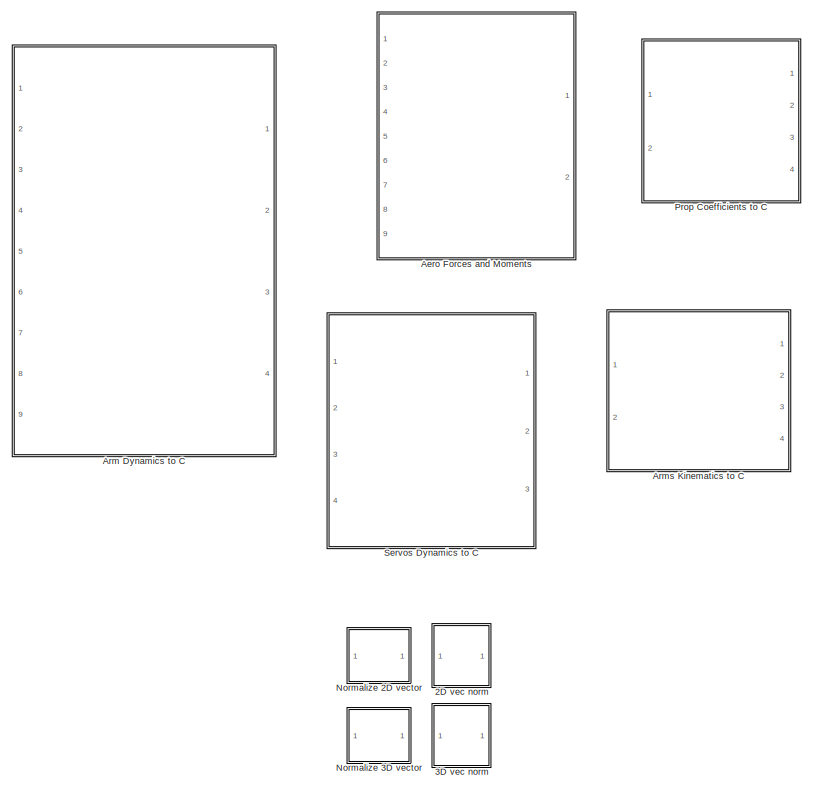
[diagram: root canvas - part 1/4, top left region]
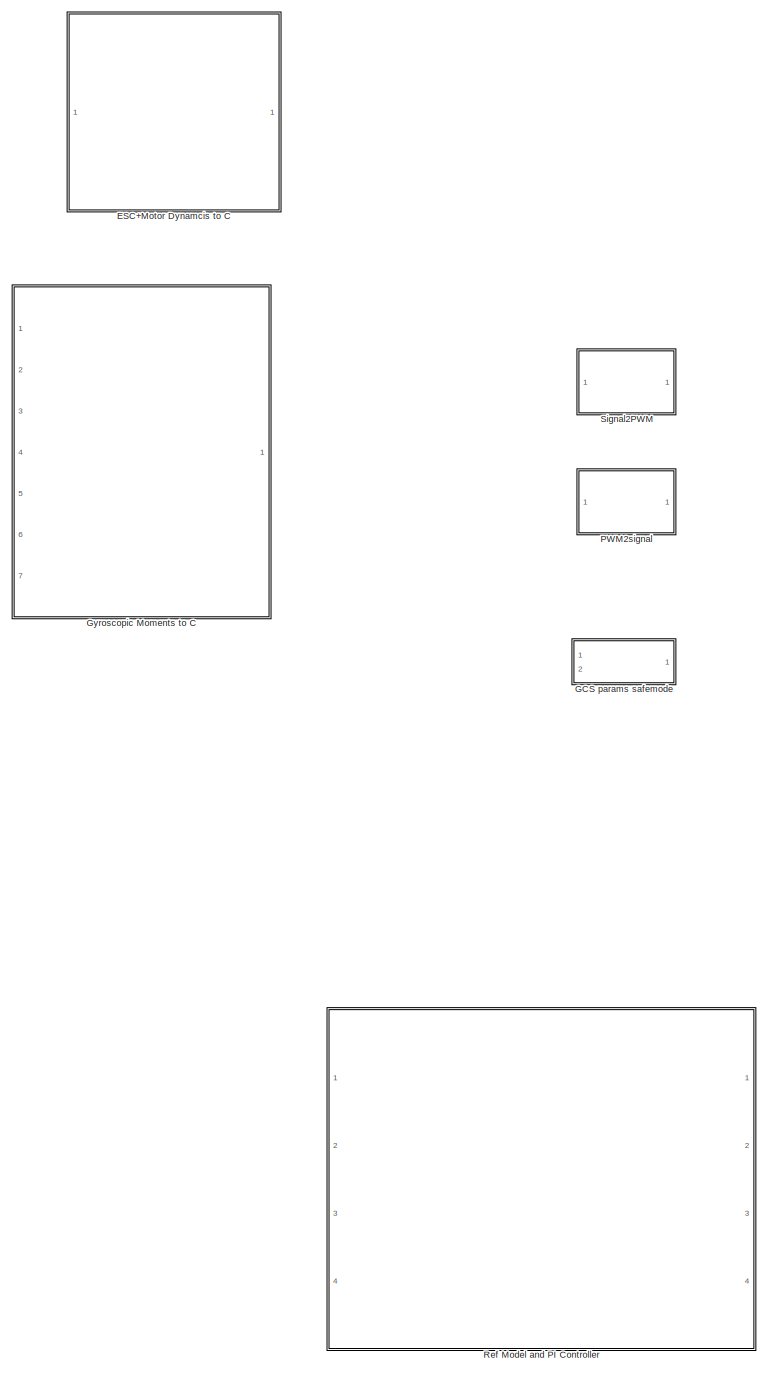
[diagram: root canvas - part 2/4, center side, full height]
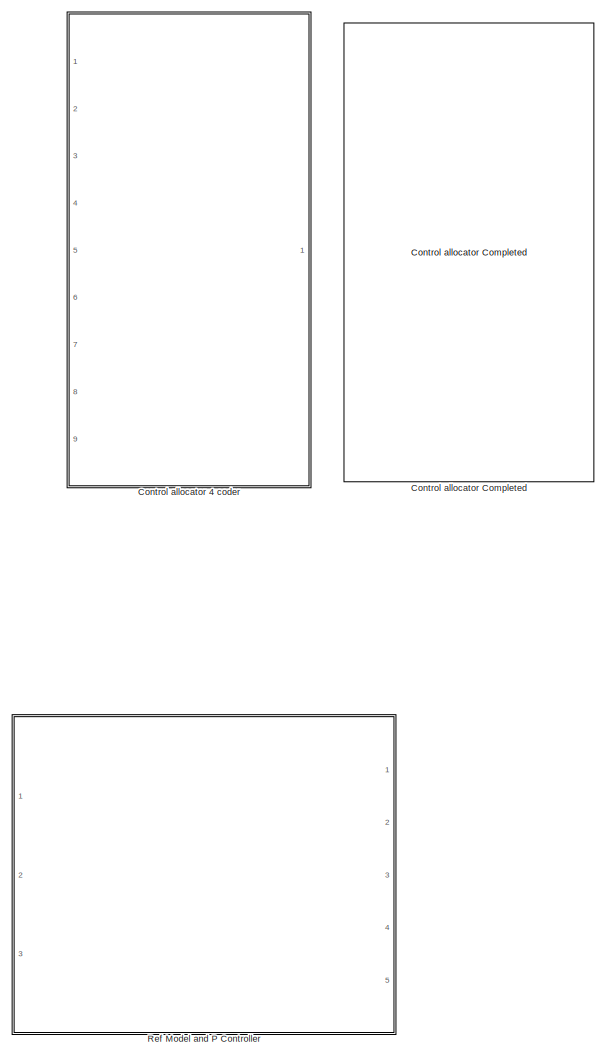
[diagram: root canvas - part 3/4, middle right region]
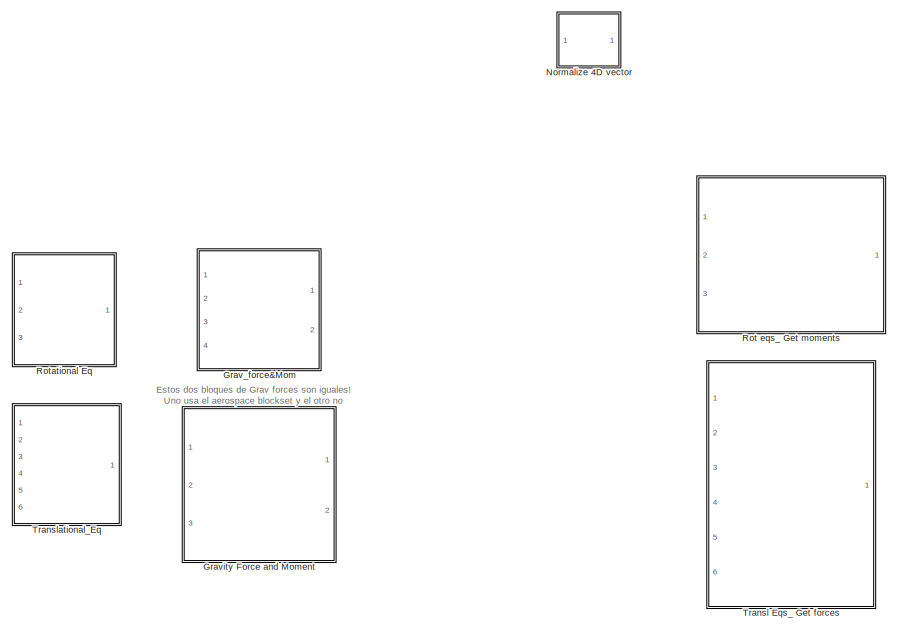
[diagram: root canvas - part 4/4, bottom left region]
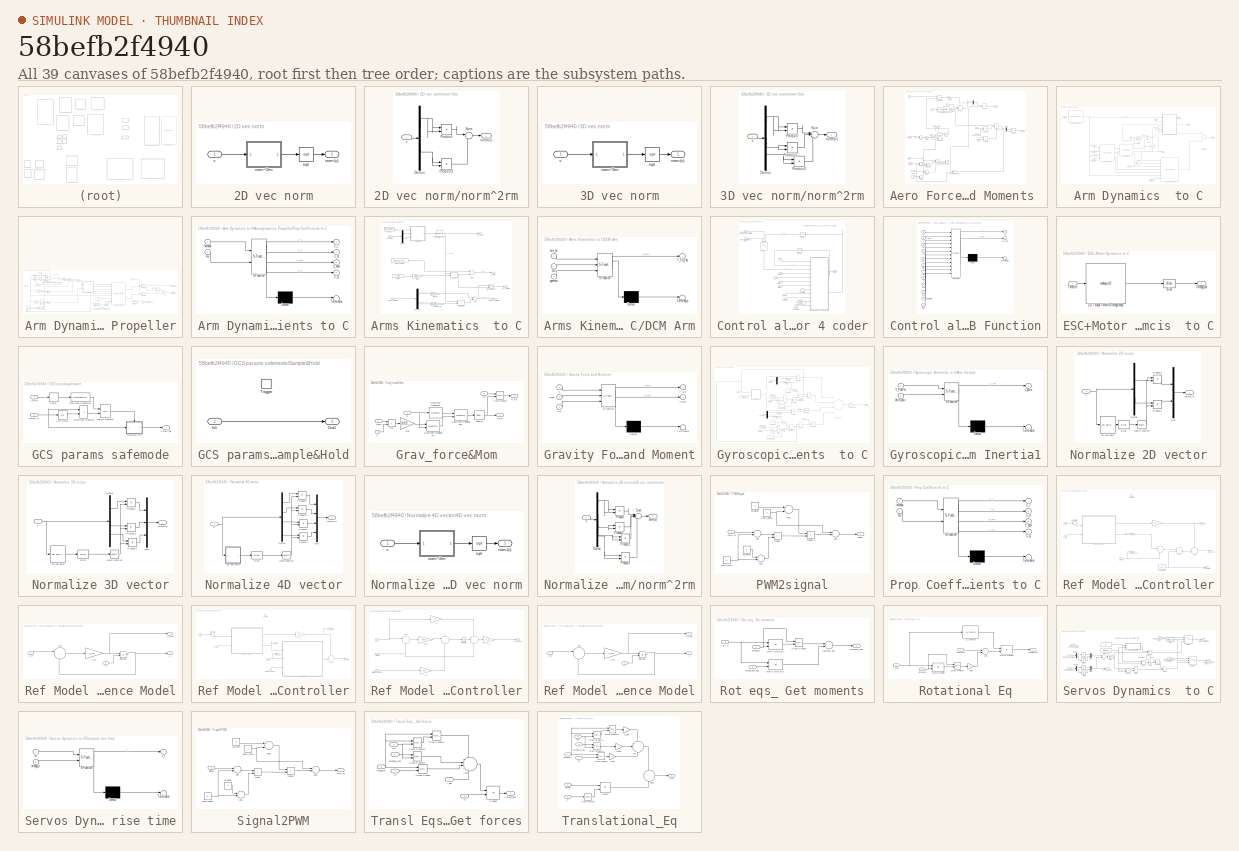
[diagram: thumbnail index - all 39 canvases of the model, root first then tree order]
MODEL slx_58befb2f4940
KIND library
CONFIG AbsTol = auto
CONFIG FixedStep = auto
CONFIG MaxStep = auto
CONFIG MinStep = auto
CONFIG RelTol = 1e-3
CONFIG SampleTimeConstraint = Unconstrained
CONFIG Solver = ode45
CONFIG SolverMode = SingleTasking
CONFIG SolverName = ode45
CONFIG StartTime = 0.0
CONFIG StopTime = 10.0
BLOCK [SubSystem] 2D vec norm
  Ports = [1, 1]
  RequestExecContextInheritance = off
  TreatAsAtomicUnit = on
BLOCK [Outport] 2D vec norm/norm(v)
  IconDisplay = Port number
BLOCK [SubSystem] 2D vec norm/norm^2rm
  Ports = [1, 1]
  RequestExecContextInheritance = off
  TreatAsAtomicUnit = on
BLOCK [Demux] 2D vec norm/norm^2rm/Demux
  DisplayOption = bar
  Outputs = 2
  Ports = [1, 2]
BLOCK [Product] 2D vec norm/norm^2rm/Product
  InputSameDT = off
  OutDataTypeStr = Inherit: Inherit via internal rule
  Ports = [2, 1]
  RndMeth = Floor
  SaturateOnIntegerOverflow = off
BLOCK [Product] 2D vec norm/norm^2rm/Product1
  InputSameDT = off
  OutDataTypeStr = Inherit: Inherit via internal rule
  Ports = [2, 1]
  RndMeth = Floor
  SaturateOnIntegerOverflow = off
BLOCK [Sum] 2D vec norm/norm^2rm/Sum
  IconShape = round
  InputSameDT = off
  Inputs = 2
  OutDataTypeStr = Inherit: Inherit via internal rule
  Ports = [2, 1]
  SaturateOnIntegerOverflow = off
BLOCK [Outport] 2D vec norm/norm^2rm/norm(v)
  IconDisplay = Port number
BLOCK [Inport] 2D vec norm/norm^2rm/v
  IconDisplay = Port number
BLOCK [Sqrt] 2D vec norm/sqrt
  AlgorithmType = Newton-Raphson
BLOCK [Inport] 2D vec norm/v
  IconDisplay = Port number
BLOCK [SubSystem] 3D vec norm
  Ports = [1, 1]
  RequestExecContextInheritance = off
  TreatAsAtomicUnit = on
BLOCK [Outport] 3D vec norm/norm(v)
  IconDisplay = Port number
BLOCK [SubSystem] 3D vec norm/norm^2rm
  Ports = [1, 1]
  RequestExecContextInheritance = off
  TreatAsAtomicUnit = on
BLOCK [Demux] 3D vec norm/norm^2rm/Demux
  DisplayOption = bar
  Outputs = 3
  Ports = [1, 3]
BLOCK [Product] 3D vec norm/norm^2rm/Product
  InputSameDT = off
  OutDataTypeStr = Inherit: Inherit via internal rule
  Ports = [2, 1]
  RndMeth = Floor
  SaturateOnIntegerOverflow = off
BLOCK [Product] 3D vec norm/norm^2rm/Product1
  InputSameDT = off
  OutDataTypeStr = Inherit: Inherit via internal rule
  Ports = [2, 1]
  RndMeth = Floor
  SaturateOnIntegerOverflow = off
BLOCK [Product] 3D vec norm/norm^2rm/Product2
  InputSameDT = off
  OutDataTypeStr = Inherit: Inherit via internal rule
  Ports = [2, 1]
  RndMeth = Floor
  SaturateOnIntegerOverflow = off
BLOCK [Sum] 3D vec norm/norm^2rm/Sum
  IconShape = round
  InputSameDT = off
  Inputs = 3
  OutDataTypeStr = Inherit: Inherit via internal rule
  Ports = [3, 1]
  SaturateOnIntegerOverflow = off
BLOCK [Outport] 3D vec norm/norm^2rm/norm(v)
  IconDisplay = Port number
BLOCK [Inport] 3D vec norm/norm^2rm/v
  IconDisplay = Port number
BLOCK [Sqrt] 3D vec norm/sqrt
  AlgorithmType = Newton-Raphson
BLOCK [Inport] 3D vec norm/v
  IconDisplay = Port number
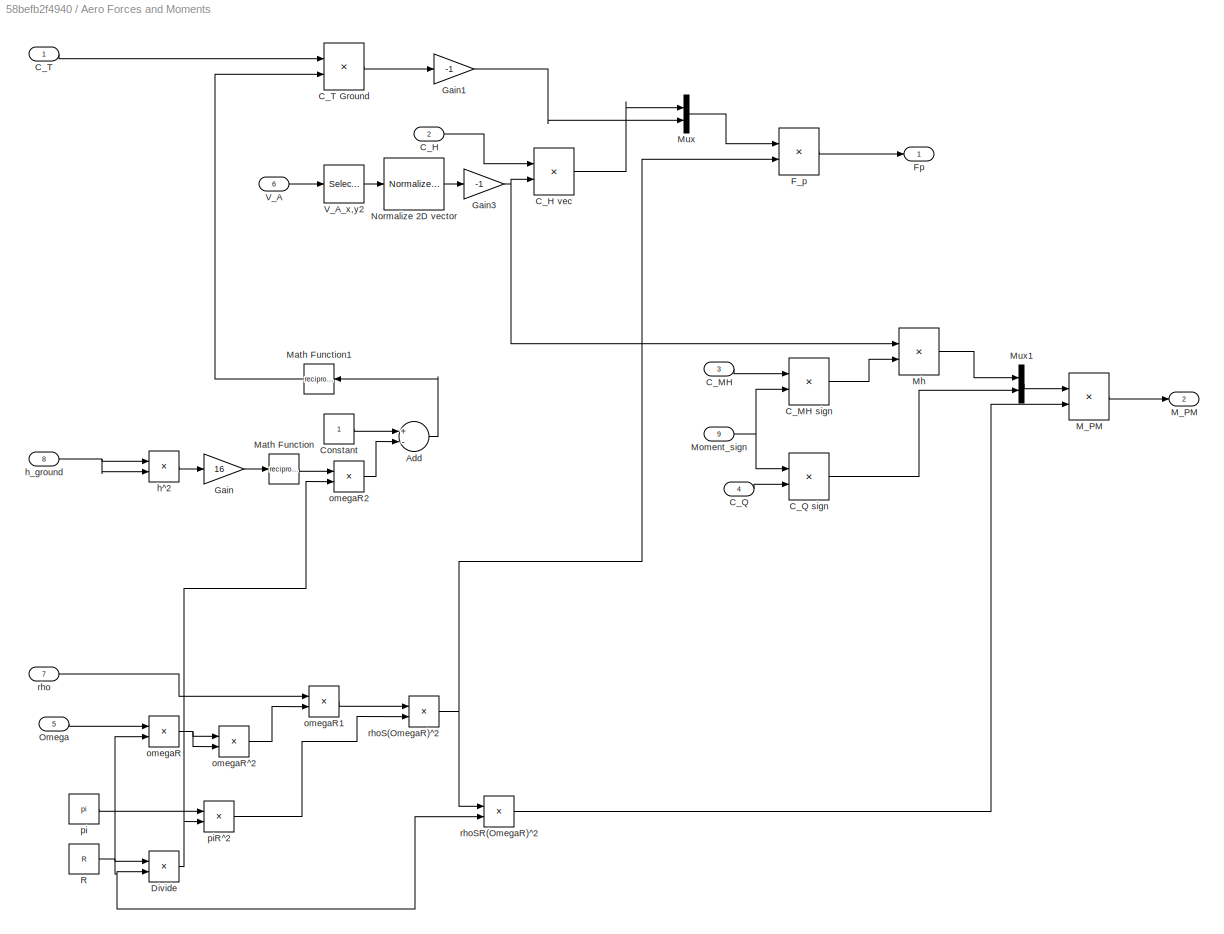
BLOCK [SubSystem] Aero Forces and Moments 
  Ports = [9, 2]
  RequestExecContextInheritance = off
  TreatAsAtomicUnit = on
BLOCK [Sum] Aero Forces and Moments /Add
  InputSameDT = off
  Inputs = +-
  OutDataTypeStr = Inherit: Inherit via internal rule
  Ports = [2, 1]
  SaturateOnIntegerOverflow = off
BLOCK [Inport] Aero Forces and Moments /C_H
  IconDisplay = Port number
  Port = 2
BLOCK [Product] Aero Forces and Moments /C_H vec
  InputSameDT = off
  Inputs = **
  OutDataTypeStr = Inherit: Inherit via internal rule
  Ports = [2, 1]
  RndMeth = Floor
  SaturateOnIntegerOverflow = off
BLOCK [Inport] Aero Forces and Moments /C_MH
  IconDisplay = Port number
  Port = 3
BLOCK [Product] Aero Forces and Moments /C_MH sign
  InputSameDT = off
  Inputs = **
  OutDataTypeStr = Inherit: Inherit via internal rule
  Ports = [2, 1]
  RndMeth = Floor
  SaturateOnIntegerOverflow = off
BLOCK [Inport] Aero Forces and Moments /C_Q
  IconDisplay = Port number
  Port = 4
BLOCK [Product] Aero Forces and Moments /C_Q sign
  InputSameDT = off
  Inputs = **
  OutDataTypeStr = Inherit: Inherit via internal rule
  Ports = [2, 1]
  RndMeth = Floor
  SaturateOnIntegerOverflow = off
BLOCK [Inport] Aero Forces and Moments /C_T
  IconDisplay = Port number
BLOCK [Product] Aero Forces and Moments /C_T Ground
  InputSameDT = off
  Inputs = **
  OutDataTypeStr = Inherit: Inherit via internal rule
  Ports = [2, 1]
  RndMeth = Floor
  SaturateOnIntegerOverflow = off
BLOCK [Constant] Aero Forces and Moments /Constant
BLOCK [Product] Aero Forces and Moments /Divide
  InputSameDT = off
  Inputs = **
  OutDataTypeStr = Inherit: Inherit via internal rule
  Ports = [2, 1]
  RndMeth = Floor
  SaturateOnIntegerOverflow = off
BLOCK [Product] Aero Forces and Moments /F_p
  InputSameDT = off
  Inputs = **
  OutDataTypeStr = Inherit: Inherit via internal rule
  Ports = [2, 1]
  RndMeth = Floor
  SaturateOnIntegerOverflow = off
BLOCK [Outport] Aero Forces and Moments /Fp
  IconDisplay = Port number
BLOCK [Gain] Aero Forces and Moments /Gain
  Gain = 16
  OutDataTypeStr = Inherit: Inherit via internal rule
  ParamDataTypeStr = Inherit: Inherit via internal rule
  SaturateOnIntegerOverflow = off
BLOCK [Gain] Aero Forces and Moments /Gain1
  Gain = -1
  OutDataTypeStr = Inherit: Inherit via internal rule
  ParamDataTypeStr = Inherit: Inherit via internal rule
  SaturateOnIntegerOverflow = off
BLOCK [Gain] Aero Forces and Moments /Gain3
  Gain = -1
  OutDataTypeStr = Inherit: Inherit via internal rule
  ParamDataTypeStr = Inherit: Inherit via internal rule
  SaturateOnIntegerOverflow = off
BLOCK [Product] Aero Forces and Moments /M_PM
  InputSameDT = off
  Inputs = **
  OutDataTypeStr = Inherit: Inherit via internal rule
  Ports = [2, 1]
  RndMeth = Floor
  SaturateOnIntegerOverflow = off
BLOCK [Outport] Aero Forces and Moments /M_PM 
  IconDisplay = Port number
  Port = 2
BLOCK [Math] Aero Forces and Moments /Math Function
  Operator = reciprocal
  Ports = [1, 1]
BLOCK [Math] Aero Forces and Moments /Math Function1
  Operator = reciprocal
  Ports = [1, 1]
BLOCK [Product] Aero Forces and Moments /Mh
  InputSameDT = off
  Inputs = **
  OutDataTypeStr = Inherit: Inherit via internal rule
  Ports = [2, 1]
  RndMeth = Floor
  SaturateOnIntegerOverflow = off
BLOCK [Inport] Aero Forces and Moments /Moment_sign
  IconDisplay = Port number
  Port = 9
BLOCK [Mux] Aero Forces and Moments /Mux
  DisplayOption = bar
  Inputs = [2,1]
  Ports = [2, 1]
BLOCK [Mux] Aero Forces and Moments /Mux1
  DisplayOption = bar
  Inputs = [2,1]
  Ports = [2, 1]
BLOCK [Reference] Aero Forces and Moments /Normalize 2D vector  REF=XXCopter_Control/Normalize 2D vector
  Ports = [1, 1]
  SourceBlock = XXCopter_Control/Normalize 2D vector
  SourceType = SubSystem
BLOCK [Inport] Aero Forces and Moments /Omega
  IconDisplay = Port number
  Port = 5
BLOCK [Constant] Aero Forces and Moments /R
  Value = R
BLOCK [Inport] Aero Forces and Moments /V_A
  IconDisplay = Port number
  Port = 6
BLOCK [Selector] Aero Forces and Moments /V_A_x,y2
  IndexMode = Zero-based
  Indices = [0,1]
  InputPortWidth = 3
  Ports = [1, 1]
BLOCK [Product] Aero Forces and Moments /h^2
  InputSameDT = off
  Inputs = **
  OutDataTypeStr = Inherit: Inherit via internal rule
  Ports = [2, 1]
  RndMeth = Floor
  SaturateOnIntegerOverflow = off
BLOCK [Inport] Aero Forces and Moments /h_ground
  IconDisplay = Port number
  Port = 8
BLOCK [Product] Aero Forces and Moments /omegaR
  InputSameDT = off
  Inputs = **
  OutDataTypeStr = Inherit: Inherit via internal rule
  Ports = [2, 1]
  RndMeth = Floor
  SaturateOnIntegerOverflow = off
BLOCK [Product] Aero Forces and Moments /omegaR1
  InputSameDT = off
  Inputs = **
  OutDataTypeStr = Inherit: Inherit via internal rule
  Ports = [2, 1]
  RndMeth = Floor
  SaturateOnIntegerOverflow = off
BLOCK [Product] Aero Forces and Moments /omegaR2
  InputSameDT = off
  Inputs = **
  OutDataTypeStr = Inherit: Inherit via internal rule
  Ports = [2, 1]
  RndMeth = Floor
  SaturateOnIntegerOverflow = off
BLOCK [Product] Aero Forces and Moments /omegaR^2
  InputSameDT = off
  Inputs = **
  OutDataTypeStr = Inherit: Inherit via internal rule
  Ports = [2, 1]
  RndMeth = Floor
  SaturateOnIntegerOverflow = off
BLOCK [Constant] Aero Forces and Moments /pi
  Value = pi
BLOCK [Product] Aero Forces and Moments /piR^2
  InputSameDT = off
  Inputs = **
  OutDataTypeStr = Inherit: Inherit via internal rule
  Ports = [2, 1]
  RndMeth = Floor
  SaturateOnIntegerOverflow = off
BLOCK [Inport] Aero Forces and Moments /rho
  IconDisplay = Port number
  Port = 7
BLOCK [Product] Aero Forces and Moments /rhoS(OmegaR)^2
  InputSameDT = off
  Inputs = **
  OutDataTypeStr = Inherit: Inherit via internal rule
  Ports = [2, 1]
  RndMeth = Floor
  SaturateOnIntegerOverflow = off
BLOCK [Product] Aero Forces and Moments /rhoSR(OmegaR)^2
  InputSameDT = off
  Inputs = **
  OutDataTypeStr = Inherit: Inherit via internal rule
  Ports = [2, 1]
  RndMeth = Floor
  SaturateOnIntegerOverflow = off
BLOCK [SubSystem] Arm Dynamics  to C
  Ports = [9, 4]
  RequestExecContextInheritance = off
  TreatAsAtomicUnit = on
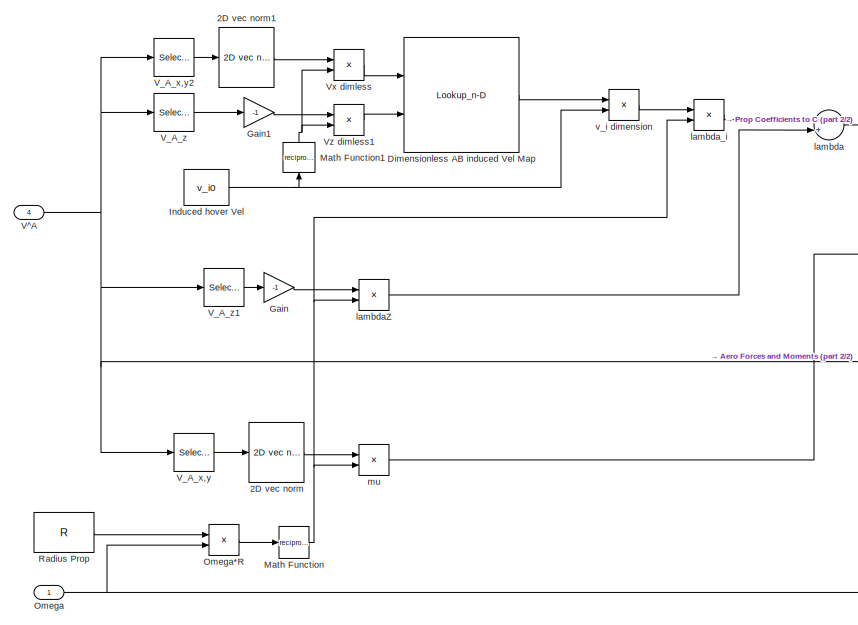
[diagram: Arm Dynamics  to C/Aerodynamics Propeller - part 1/2, left side, full height]
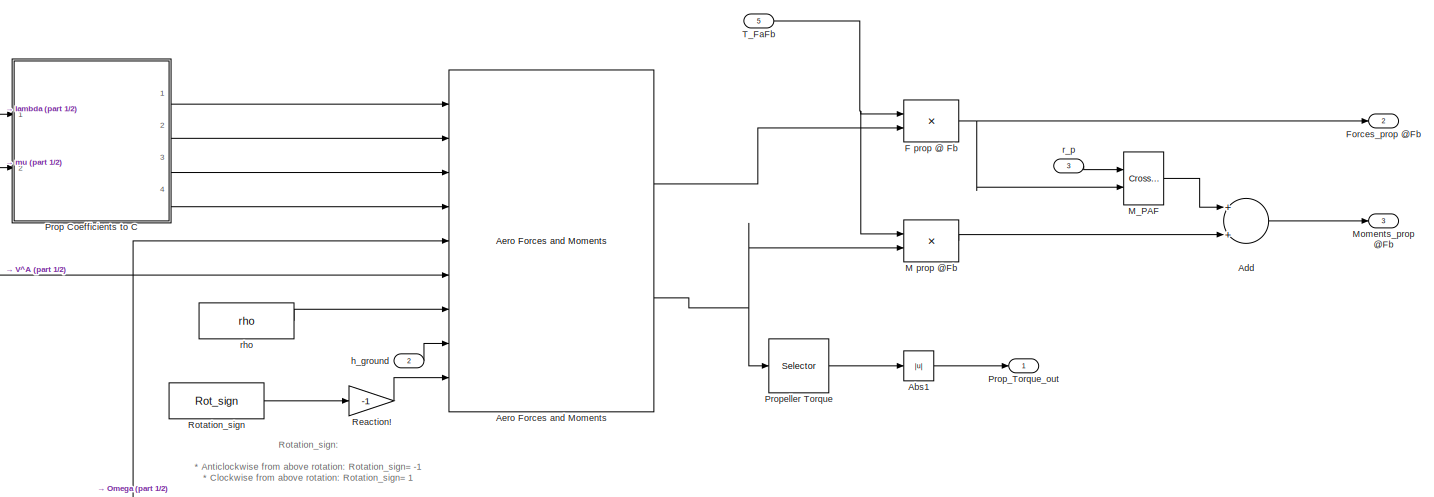
[diagram: Arm Dynamics  to C/Aerodynamics Propeller - part 2/2, right side, full height]
BLOCK [SubSystem] Arm Dynamics  to C/Aerodynamics Propeller
  MinAlgLoopOccurrences = on
  Ports = [5, 3]
  RequestExecContextInheritance = off
  TreatAsAtomicUnit = on
BLOCK [Reference] Arm Dynamics  to C/Aerodynamics Propeller/2D vec norm  REF=XXCopter_Control/2D vec norm
  Ports = [1, 1]
  SourceBlock = XXCopter_Control/2D vec norm
  SourceType = SubSystem
BLOCK [Reference] Arm Dynamics  to C/Aerodynamics Propeller/2D vec norm1  REF=XXCopter_Control/2D vec norm
  Ports = [1, 1]
  SourceBlock = XXCopter_Control/2D vec norm
  SourceType = SubSystem
BLOCK [Abs] Arm Dynamics  to C/Aerodynamics Propeller/Abs1
  SaturateOnIntegerOverflow = off
BLOCK [Sum] Arm Dynamics  to C/Aerodynamics Propeller/Add
  InputSameDT = off
  OutDataTypeStr = Inherit: Inherit via internal rule
  Ports = [2, 1]
  SaturateOnIntegerOverflow = off
BLOCK [Reference] Arm Dynamics  to C/Aerodynamics Propeller/Aero Forces and Moments   REF=XXCopter_Control/Aero Forces and Moments 
  Ports = [9, 2]
  SourceBlock = XXCopter_Control/Aero Forces and Moments
  SourceType = SubSystem
BLOCK [Lookup_n-D] Arm Dynamics  to C/Aerodynamics Propeller/Dimensionless AB induced Vel Map
  BreakpointsForDimension1 = Vx_adim
  BreakpointsForDimension2 = Vz_adim
  BreakpointsForDimension3 = [5, 7]
  ExtrapMethod = Clip
  FractionDataTypeStr = single
  IntermediateResultsDataTypeStr = single
  OutDataTypeStr = single
  Ports = [2, 1]
  RemoveProtectionInput = on
  RndMeth = Zero
  Table = v_i_adim
  TableDataTypeStr = single
BLOCK [Product] Arm Dynamics  to C/Aerodynamics Propeller/F prop @ Fb
  InputSameDT = off
  Multiplication = Matrix(*)
  OutDataTypeStr = Inherit: Inherit via internal rule
  Ports = [2, 1]
  RndMeth = Floor
  SaturateOnIntegerOverflow = off
BLOCK [Outport] Arm Dynamics  to C/Aerodynamics Propeller/Forces_prop @Fb
  IconDisplay = Port number
  Port = 2
BLOCK [Gain] Arm Dynamics  to C/Aerodynamics Propeller/Gain
  Gain = -1
  OutDataTypeStr = Inherit: Inherit via internal rule
  ParamDataTypeStr = Inherit: Inherit via internal rule
  SaturateOnIntegerOverflow = off
BLOCK [Gain] Arm Dynamics  to C/Aerodynamics Propeller/Gain1
  Gain = -1
  OutDataTypeStr = Inherit: Inherit via internal rule
  ParamDataTypeStr = Inherit: Inherit via internal rule
  SaturateOnIntegerOverflow = off
BLOCK [Constant] Arm Dynamics  to C/Aerodynamics Propeller/Induced hover Vel
  Value = v_i0
BLOCK [Product] Arm Dynamics  to C/Aerodynamics Propeller/M prop @Fb
  InputSameDT = off
  Multiplication = Matrix(*)
  OutDataTypeStr = Inherit: Inherit via internal rule
  Ports = [2, 1]
  RndMeth = Floor
  SaturateOnIntegerOverflow = off
BLOCK [Reference] Arm Dynamics  to C/Aerodynamics Propeller/M_PAF  REF=vrlib/Utilities/Cross Product
  Ports = [2, 1]
  SourceBlock = vrlib/Utilities/Cross Product
  SourceType = Cross Product
BLOCK [Math] Arm Dynamics  to C/Aerodynamics Propeller/Math Function
  Operator = reciprocal
  Ports = [1, 1]
BLOCK [Math] Arm Dynamics  to C/Aerodynamics Propeller/Math Function1
  Operator = reciprocal
  Ports = [1, 1]
BLOCK [Outport] Arm Dynamics  to C/Aerodynamics Propeller/Moments_prop @Fb
  IconDisplay = Port number
  Port = 3
BLOCK [Inport] Arm Dynamics  to C/Aerodynamics Propeller/Omega
  IconDisplay = Port number
BLOCK [Product] Arm Dynamics  to C/Aerodynamics Propeller/Omega*R
  InputSameDT = off
  Inputs = **
  OutDataTypeStr = Inherit: Inherit via internal rule
  Ports = [2, 1]
  RndMeth = Floor
  SaturateOnIntegerOverflow = off
BLOCK [SubSystem] Arm Dynamics  to C/Aerodynamics Propeller/Prop Coefficients to C
  ErrorFcn = Stateflow.Translate.translate
  PermitHierarchicalResolution = ExplicitOnly
  Ports = [2, 4]
  RequestExecContextInheritance = off
  SFBlockType = MATLAB Function
  TreatAsAtomicUnit = on
BLOCK [Demux] Arm Dynamics  to C/Aerodynamics Propeller/Prop Coefficients to C/ Demux 
  Outputs = 1
  Ports = [1, 1]
BLOCK [S-Function] Arm Dynamics  to C/Aerodynamics Propeller/Prop Coefficients to C/ SFunction 
  FunctionName = sf_sfun
  Parameters = C_d0,a,sigma,theta_0,theta_1
  PortCounts = [2 5]
  Ports = [2, 5]
  Tag = Stateflow S-Function XXCopter_Control 2
BLOCK [Terminator] Arm Dynamics  to C/Aerodynamics Propeller/Prop Coefficients to C/ Terminator 
BLOCK [Outport] Arm Dynamics  to C/Aerodynamics Propeller/Prop Coefficients to C/C_H
  IconDisplay = Port number
  Port = 2
BLOCK [Outport] Arm Dynamics  to C/Aerodynamics Propeller/Prop Coefficients to C/C_MH
  IconDisplay = Port number
  Port = 3
BLOCK [Outport] Arm Dynamics  to C/Aerodynamics Propeller/Prop Coefficients to C/C_Q
  IconDisplay = Port number
  Port = 4
BLOCK [Outport] Arm Dynamics  to C/Aerodynamics Propeller/Prop Coefficients to C/C_T
  IconDisplay = Port number
BLOCK [Inport] Arm Dynamics  to C/Aerodynamics Propeller/Prop Coefficients to C/lambda
  IconDisplay = Port number
BLOCK [Inport] Arm Dynamics  to C/Aerodynamics Propeller/Prop Coefficients to C/mu
  IconDisplay = Port number
  Port = 2
BLOCK [Outport] Arm Dynamics  to C/Aerodynamics Propeller/Prop_Torque_out
  IconDisplay = Port number
BLOCK [Selector] Arm Dynamics  to C/Aerodynamics Propeller/Propeller Torque
  IndexMode = Zero-based
  Indices = 2
  InputPortWidth = 3
  Ports = [1, 1]
BLOCK [Constant] Arm Dynamics  to C/Aerodynamics Propeller/Radius Prop
  OutDataTypeStr = double
  Value = R
BLOCK [Gain] Arm Dynamics  to C/Aerodynamics Propeller/Reaction!
  Gain = -1
  OutDataTypeStr = Inherit: Inherit via internal rule
  ParamDataTypeStr = Inherit: Inherit via internal rule
  SaturateOnIntegerOverflow = off
BLOCK [Constant] Arm Dynamics  to C/Aerodynamics Propeller/Rotation_sign
  Value = Rot_sign
BLOCK [Inport] Arm Dynamics  to C/Aerodynamics Propeller/T_FaFb
  IconDisplay = Port number
  Port = 5
BLOCK [Inport] Arm Dynamics  to C/Aerodynamics Propeller/V^A
  IconDisplay = Port number
  Port = 4
BLOCK [Selector] Arm Dynamics  to C/Aerodynamics Propeller/V_A_x,y
  IndexMode = Zero-based
  Indices = [0,1]
  InputPortWidth = 3
  Ports = [1, 1]
BLOCK [Selector] Arm Dynamics  to C/Aerodynamics Propeller/V_A_x,y2
  IndexMode = Zero-based
  Indices = [0,1]
  InputPortWidth = 3
  Ports = [1, 1]
BLOCK [Selector] Arm Dynamics  to C/Aerodynamics Propeller/V_A_z
  IndexMode = Zero-based
  Indices = 2
  InputPortWidth = 3
  Ports = [1, 1]
BLOCK [Selector] Arm Dynamics  to C/Aerodynamics Propeller/V_A_z1
  IndexMode = Zero-based
  Indices = 2
  InputPortWidth = 3
  Ports = [1, 1]
BLOCK [Product] Arm Dynamics  to C/Aerodynamics Propeller/Vx dimless
  InputSameDT = off
  Inputs = **
  OutDataTypeStr = double
  Ports = [2, 1]
  RndMeth = Floor
  SaturateOnIntegerOverflow = off
BLOCK [Product] Arm Dynamics  to C/Aerodynamics Propeller/Vz dimless1
  InputSameDT = off
  Inputs = **
  OutDataTypeStr = double
  Ports = [2, 1]
  RndMeth = Floor
  SaturateOnIntegerOverflow = off
BLOCK [Inport] Arm Dynamics  to C/Aerodynamics Propeller/h_ground
  IconDisplay = Port number
  Port = 2
BLOCK [Sum] Arm Dynamics  to C/Aerodynamics Propeller/lambda
  InputSameDT = off
  OutDataTypeStr = Inherit: Inherit via internal rule
  Ports = [2, 1]
  SaturateOnIntegerOverflow = off
BLOCK [Product] Arm Dynamics  to C/Aerodynamics Propeller/lambdaZ
  InputSameDT = off
  Inputs = **
  OutDataTypeStr = Inherit: Inherit via internal rule
  Ports = [2, 1]
  RndMeth = Floor
  SaturateOnIntegerOverflow = off
BLOCK [Product] Arm Dynamics  to C/Aerodynamics Propeller/lambda_i
  InputSameDT = off
  Inputs = **
  OutDataTypeStr = Inherit: Inherit via internal rule
  Ports = [2, 1]
  RndMeth = Floor
  SaturateOnIntegerOverflow = off
BLOCK [Product] Arm Dynamics  to C/Aerodynamics Propeller/mu
  InputSameDT = off
  Inputs = **
  OutDataTypeStr = Inherit: Inherit via internal rule
  Ports = [2, 1]
  RndMeth = Floor
  SaturateOnIntegerOverflow = off
BLOCK [Inport] Arm Dynamics  to C/Aerodynamics Propeller/r_p
  IconDisplay = Port number
  Port = 3
BLOCK [Constant] Arm Dynamics  to C/Aerodynamics Propeller/rho
  Value = rho
BLOCK [Product] Arm Dynamics  to C/Aerodynamics Propeller/v_i dimension
  InputSameDT = off
  Inputs = **
  OutDataTypeStr = Inherit: Inherit via internal rule
  Ports = [2, 1]
  RndMeth = Floor
  SaturateOnIntegerOverflow = off
BLOCK [Reference] Arm Dynamics  to C/Arms Kinematics  to C  REF=XXCopter_Control/Arms Kinematics  to C
  Arm_hub_position = arm_hub_pos
  Arm_number = arm_num
  Ports = [2, 4]
  SourceBlock = XXCopter_Control/Arms Kinematics  to C
  eta_dir = eta_dir
  gamma_dir = gamma_dir
  h_prop = h
BLOCK [Inport] Arm Dynamics  to C/Comm Angles (rad)
  IconDisplay = Port number
  Port = 2
BLOCK [Reference] Arm Dynamics  to C/Cross Product  REF=vrlib/Utilities/Cross Product
  Ports = [2, 1]
  SourceBlock = vrlib/Utilities/Cross Product
  SourceType = Cross Product
BLOCK [Reference] Arm Dynamics  to C/ESC+Motor Dynamcis  to C  REF=XXCopter_Control/ESC+Motor Dynamcis  to C
  Ports = [1, 1]
  SourceBlock = XXCopter_Control/ESC+Motor Dynamcis  to C
  SourceType = SubSystem
  VariantControl = Variant_completed
BLOCK [Product] Arm Dynamics  to C/F_b->F_A
  InputSameDT = off
  Multiplication = Matrix(*)
  OutDataTypeStr = Inherit: Inherit via internal rule
  Ports = [2, 1]
  RndMeth = Floor
  SaturateOnIntegerOverflow = off
BLOCK [Outport] Arm Dynamics  to C/Forces
  IconDisplay = Port number
BLOCK [Reference] Arm Dynamics  to C/Gyroscopic Moments  to C  REF=XXCopter_Control/Gyroscopic Moments  to C
  Arm_axis = Arm_axis
  J_FA = J_FA
  J_T = J_T
  Ports = [7, 1]
  Rot_sign = Rot_sign
  SourceBlock = XXCopter_Control/Gyroscopic Moments  to C
  eta_dir = eta_dir
  gamma_dir = gamma_dir
BLOCK [Outport] Arm Dynamics  to C/Moments
  IconDisplay = Port number
  Port = 2
BLOCK [Inport] Arm Dynamics  to C/Omega_dot actual(rad//s)
  IconDisplay = Port number
  Port = 6
BLOCK [PermuteDimensions] Arm Dynamics  to C/Permute Dimensions
BLOCK [Reference] Arm Dynamics  to C/Servos Dynamics  to C  REF=XXCopter_Control/Servos Dynamics  to C
  Ports = [4, 3]
  SourceBlock = XXCopter_Control/Servos Dynamics  to C
  eta_inf_lim = eta_inf_lim
  eta_sup_lim = eta_sup_lim
  gamma_inf_lim = gamma_inf_lim
  gamma_sup_lim = gamma_sup_lim
  omega_n = omega_n
  switch_val = direct_feedforward
  xi = xi
BLOCK [Outport] Arm Dynamics  to C/T_FaFb
  IconDisplay = Port number
  Port = 3
BLOCK [Terminator] Arm Dynamics  to C/Terminator
BLOCK [Inport] Arm Dynamics  to C/Throttle [0-1]
  IconDisplay = Port number
BLOCK [Sum] Arm Dynamics  to C/Total moments
  InputSameDT = off
  OutDataTypeStr = Inherit: Inherit via internal rule
  Ports = [2, 1]
  SaturateOnIntegerOverflow = off
BLOCK [Sum] Arm Dynamics  to C/V^A (m//s)
  InputSameDT = off
  Inputs = +++
  OutDataTypeStr = Inherit: Inherit via internal rule
  Ports = [3, 1]
  SaturateOnIntegerOverflow = off
BLOCK [Inport] Arm Dynamics  to C/V_b
  IconDisplay = Port number
  Port = 5
BLOCK [Inport] Arm Dynamics  to C/angles_actual (rad)
  IconDisplay = Port number
  Port = 7
BLOCK [Inport] Arm Dynamics  to C/angles_dot_actual (rad//s)
  IconDisplay = Port number
  Port = 8
BLOCK [Inport] Arm Dynamics  to C/angles_dot_dot_actual (rad//s)
  IconDisplay = Port number
  Port = 9
BLOCK [Inport] Arm Dynamics  to C/h_ground
  IconDisplay = Port number
  Port = 3
BLOCK [Sum] Arm Dynamics  to C/omega_A
  InputSameDT = off
  OutDataTypeStr = Inherit: Inherit via internal rule
  Ports = [2, 1]
  SaturateOnIntegerOverflow = off
BLOCK [Inport] Arm Dynamics  to C/omega_b
  IconDisplay = Port number
  Port = 4
BLOCK [InportShadow] Arm Dynamics  to C/omega_b1
  IconDisplay = Port number
  Port = 4
BLOCK [Outport] Arm Dynamics  to C/r_p
  IconDisplay = Port number
  Port = 4
BLOCK [SubSystem] Arms Kinematics  to C
  Ports = [2, 4]
  RequestExecContextInheritance = off
  TreatAsAtomicUnit = on
BLOCK [Sum] Arms Kinematics  to C/Add
  InputSameDT = off
  OutDataTypeStr = Inherit: Inherit via internal rule
  Ports = [2, 1]
  SaturateOnIntegerOverflow = off
BLOCK [Sum] Arms Kinematics  to C/Add3
  InputSameDT = off
  OutDataTypeStr = Inherit: Inherit via internal rule
  Ports = [2, 1]
  SaturateOnIntegerOverflow = off
BLOCK [Inport] Arms Kinematics  to C/Angles (rad)
  IconDisplay = Port number
BLOCK [Inport] Arms Kinematics  to C/Angles_dot (rad//s)
  IconDisplay = Port number
  Port = 2
BLOCK [Constant] Arms Kinematics  to C/Arm_no
  Value = Arm_number
BLOCK [Reference] Arms Kinematics  to C/Cross Product  REF=vrlib/Utilities/Cross Product
  Ports = [2, 1]
  SourceBlock = vrlib/Utilities/Cross Product
  SourceType = Cross Product
BLOCK [SubSystem] Arms Kinematics  to C/DCM Arm
  ErrorFcn = Stateflow.Translate.translate
  PermitHierarchicalResolution = ExplicitOnly
  Ports = [3, 1]
  RequestExecContextInheritance = off
  SFBlockType = MATLAB Function
  TreatAsAtomicUnit = on
BLOCK [Demux] Arms Kinematics  to C/DCM Arm/ Demux 
  Outputs = 1
  Ports = [1, 1]
BLOCK [S-Function] Arms Kinematics  to C/DCM Arm/ SFunction 
  FunctionName = sf_sfun
  PortCounts = [3 2]
  Ports = [3, 2]
  Tag = Stateflow S-Function XXCopter_Control 9
BLOCK [Terminator] Arms Kinematics  to C/DCM Arm/ Terminator 
BLOCK [Outport] Arms Kinematics  to C/DCM Arm/T_Fb_FA
  IconDisplay = Port number
BLOCK [Inport] Arms Kinematics  to C/DCM Arm/arm_no
  IconDisplay = Port number
BLOCK [Inport] Arms Kinematics  to C/DCM Arm/eta
  IconDisplay = Port number
  Port = 2
BLOCK [Inport] Arms Kinematics  to C/DCM Arm/gamma
  IconDisplay = Port number
  Port = 3
BLOCK [Demux] Arms Kinematics  to C/Demux
  DisplayOption = bar
  Outputs = 2
  Ports = [1, 2]
BLOCK [Demux] Arms Kinematics  to C/Demux3
  DisplayOption = bar
  Outputs = 2
  Ports = [1, 2]
BLOCK [Product] Arms Kinematics  to C/Fa->Fb
  InputSameDT = off
  Multiplication = Matrix(*)
  OutDataTypeStr = Inherit: Inherit via internal rule
  Ports = [2, 1]
  RndMeth = Floor
  SaturateOnIntegerOverflow = off
BLOCK [Gain] Arms Kinematics  to C/Gain7
  Gain = [0;0;-1]
  OutDataTypeStr = Inherit: Inherit via internal rule
  ParamDataTypeStr = Inherit: Inherit via internal rule
  SaturateOnIntegerOverflow = off
BLOCK [Constant] Arms Kinematics  to C/Hub_position
  Value = Arm_hub_position
BLOCK [Product] Arms Kinematics  to C/Matrix Multiply
  InputSameDT = off
  Multiplication = Matrix(*)
  OutDataTypeStr = Inherit: Inherit via internal rule
  Ports = [2, 1]
  RndMeth = Floor
  SaturateOnIntegerOverflow = off
BLOCK [PermuteDimensions] Arms Kinematics  to C/Permute Dimensions
BLOCK [Outport] Arms Kinematics  to C/T_F_a,Fb
  IconDisplay = Port number
  Port = 3
BLOCK [Gain] Arms Kinematics  to C/eta_dir
  Gain = eta_dir
  OutDataTypeStr = Inherit: Inherit via internal rule
  ParamDataTypeStr = Inherit: Inherit via internal rule
  SaturateOnIntegerOverflow = off
BLOCK [Gain] Arms Kinematics  to C/gamma_dir
  Gain = gamma_dir
  OutDataTypeStr = Inherit: Inherit via internal rule
  ParamDataTypeStr = Inherit: Inherit via internal rule
  SaturateOnIntegerOverflow = off
BLOCK [Constant] Arms Kinematics  to C/h arm
  Value = h_prop
BLOCK [Outport] Arms Kinematics  to C/omega_Ab (rad//s)
  IconDisplay = Port number
  Port = 4
BLOCK [Outport] Arms Kinematics  to C/r_p (m)
  IconDisplay = Port number
BLOCK [Outport] Arms Kinematics  to C/r_p_dot (m//s)
  IconDisplay = Port number
  Port = 2
BLOCK [SubSystem] Control allocator 4 coder
  Ports = [9, 1]
  RequestExecContextInheritance = off
BLOCK [Inport] Control allocator 4 coder/B [k x m]
  IconDisplay = Port number
  Port = 3
BLOCK [Constant] Control allocator 4 coder/Constant
  Value = T
BLOCK [Constant] Control allocator 4 coder/Constant2
  Value = imax
BLOCK [SubSystem] Control allocator 4 coder/Embedded MATLAB Function
  ErrorFcn = Stateflow.Translate.translate
  PermitHierarchicalResolution = ExplicitOnly
  Ports = [12, 2]
  RequestExecContextInheritance = off
  SFBlockType = MATLAB Function
  TreatAsAtomicUnit = on
BLOCK [Demux] Control allocator 4 coder/Embedded MATLAB Function/ Demux 
  Outputs = 1
  Ports = [1, 1]
BLOCK [S-Function] Control allocator 4 coder/Embedded MATLAB Function/ SFunction 
  FunctionName = sf_sfun
  PortCounts = [12 3]
  Ports = [12, 3]
  Tag = Stateflow S-Function XXCopter_Control 5
BLOCK [Terminator] Control allocator 4 coder/Embedded MATLAB Function/ Terminator 
BLOCK [Inport] Control allocator 4 coder/Embedded MATLAB Function/B
  IconDisplay = Port number
  Port = 5
BLOCK [Inport] Control allocator 4 coder/Embedded MATLAB Function/T
  IconDisplay = Port number
  Port = 8
BLOCK [Inport] Control allocator 4 coder/Embedded MATLAB Function/W
  IconDisplay = Port number
  Port = 3
BLOCK [Outport] Control allocator 4 coder/Embedded MATLAB Function/W_out
  IconDisplay = Port number
  Port = 2
BLOCK [Inport] Control allocator 4 coder/Embedded MATLAB Function/Wu
  IconDisplay = Port number
  Port = 10
BLOCK [Inport] Control allocator 4 coder/Embedded MATLAB Function/Wv
  IconDisplay = Port number
  Port = 9
BLOCK [Inport] Control allocator 4 coder/Embedded MATLAB Function/gammma
  IconDisplay = Port number
  Port = 11
BLOCK [Inport] Control allocator 4 coder/Embedded MATLAB Function/imax
  IconDisplay = Port number
  Port = 12
BLOCK [Inport] Control allocator 4 coder/Embedded MATLAB Function/plim
  IconDisplay = Port number
  Port = 6
BLOCK [Inport] Control allocator 4 coder/Embedded MATLAB Function/rlim
  IconDisplay = Port number
  Port = 7
BLOCK [Outport] Control allocator 4 coder/Embedded MATLAB Function/u
  IconDisplay = Port number
BLOCK [Inport] Control allocator 4 coder/Embedded MATLAB Function/u_ant
  IconDisplay = Port number
  Port = 2
BLOCK [Inport] Control allocator 4 coder/Embedded MATLAB Function/ud
  IconDisplay = Port number
  Port = 4
BLOCK [Inport] Control allocator 4 coder/Embedded MATLAB Function/v
  IconDisplay = Port number
BLOCK [Inport] Control allocator 4 coder/Enable Man_satu [1=enable; 0=disable]
  IconDisplay = Port number
  Port = 9
BLOCK [Inport] Control allocator 4 coder/Manual Saturations [m x 1]
  IconDisplay = Port number
  Port = 8
BLOCK [Switch] Control allocator 4 coder/Switch
  InputSameDT = off
  SampleTime = T
  SaturateOnIntegerOverflow = off
  Threshold = 0.5
BLOCK [UnitDelay] Control allocator 4 coder/Unit Delay
  InitialCondition = zeros(9,1)
  SampleTime = T
BLOCK [UnitDelay] Control allocator 4 coder/Unit Delay1
  InitialCondition = zeros(9,1)
  SampleTime = T
BLOCK [Inport] Control allocator 4 coder/W1 (m x m)
  IconDisplay = Port number
  Port = 7
BLOCK [Inport] Control allocator 4 coder/Wv [ k x k ]
  IconDisplay = Port number
  Port = 6
BLOCK [Constant] Control allocator 4 coder/gamma
  Value = gamma
BLOCK [Inport] Control allocator 4 coder/plim [ m x 2 ]
  IconDisplay = Port number
  Port = 4
BLOCK [Inport] Control allocator 4 coder/rlim [ m x 2 ]
  IconDisplay = Port number
  Port = 5
BLOCK [Outport] Control allocator 4 coder/u [m x 1]
  IconDisplay = Port number
BLOCK [Inport] Control allocator 4 coder/ud [m x 1]
  IconDisplay = Port number
  Port = 2
BLOCK [Inport] Control allocator 4 coder/v [k x 1]
  IconDisplay = Port number
BLOCK [Reference] Control allocator Completed   REF=qcatlib/Control allocator Completed  (lib defined in mdl_185632192637, slx_3440b88f227d, +1 more)

  CA_type = QP
  Ports = [10, 3]
  SourceBlock = qcatlib/Control allocator Completed
  SourceType = Control allocator Completed
  T = T_ctrl
  alg = WLS
  gamma = 1
  iter_max = 100
  k_B = 6
  m_B = 9
  tol = 1e-5
BLOCK [SubSystem] ESC+Motor Dynamcis  to C
  Ports = [1, 1]
  RequestExecContextInheritance = off
  TreatAsAtomicUnit = on
  VariantControl = Variant_completed
BLOCK [Lookup_n-D] ESC+Motor Dynamcis  to C/2-D Torque-Throttle-Omega Map
  BreakpointsForDimension1 = TO_map_Throtle
  BreakpointsForDimension2 = Throtle_TTO_vec
  DiagnosticForOutOfRangeInput = Warning
  ExtrapMethod = Clip
  FractionDataTypeStr = single
  IntermediateResultsDataTypeStr = single
  NumberOfTableDimensions = 1
  OutDataTypeStr = single
  Ports = [1, 1]
  RemoveProtectionInput = on
  RndMeth = Zero
  Table = TO_map_Omega
  TableDataTypeStr = single
BLOCK [Bias] ESC+Motor Dynamcis  to C/Bias
  Bias = eps
  SaturateOnIntegerOverflow = off
BLOCK [Outport] ESC+Motor Dynamcis  to C/Omega_out
  IconDisplay = Port number
BLOCK [Inport] ESC+Motor Dynamcis  to C/Throttle
  IconDisplay = Port number
BLOCK [SubSystem] GCS params safemode
  Ports = [2, 1]
  RequestExecContextInheritance = off
  TreatAsAtomicUnit = on
BLOCK [Inport] GCS params safemode/Active
  IconDisplay = Port number
BLOCK [DataTypeConversion] GCS params safemode/Data Type Conversion
  OutDataTypeStr = boolean
  RndMeth = Floor
  SaturateOnIntegerOverflow = off
BLOCK [Delay] GCS params safemode/Delay
  DelayLength = 5
  InitialCondition = 0
  InputPortMap = u0
  Ports = [1, 1]
BLOCK [Logic] GCS params safemode/Logical Operator
  AllPortsSameDT = off
  IconShape = distinctive
  OutDataTypeStr = boolean
  Ports = [2, 1]
BLOCK [Inport] GCS params safemode/Param_in
  IconDisplay = Port number
  Port = 2
BLOCK [Outport] GCS params safemode/Param_out
  IconDisplay = Port number
BLOCK [RelationalOperator] GCS params safemode/Relational Operator
  InputSameDT = off
  Operator = ~=
  OutDataTypeStr = boolean
  Ports = [2, 1]
BLOCK [SubSystem] GCS params safemode/Sample&Hold
  Ports = [1, 1, 0, 1]
  RequestExecContextInheritance = off
  TreatAsAtomicUnit = on
BLOCK [Inport] GCS params safemode/Sample&Hold/In1
  IconDisplay = Port number
BLOCK [Outport] GCS params safemode/Sample&Hold/Out1
  IconDisplay = Port number
BLOCK [TriggerPort] GCS params safemode/Sample&Hold/Trigger
  Ports = []
  StatesWhenEnabling = held
BLOCK [UnitDelay] GCS params safemode/Unit Delay
  InputProcessing = Elements as channels (sample based)
  SampleTime = -1
BLOCK [SubSystem] Grav_force&Mom
  Ports = [4, 2]
  RequestExecContextInheritance = off
  TreatAsAtomicUnit = on
BLOCK [Inport] Grav_force&Mom/CG
  IconDisplay = Port number
  Port = 3
BLOCK [Reference] Grav_force&Mom/Cross Product  REF=vrlib/Utilities/Cross Product
  Ports = [2, 1]
  SourceBlock = vrlib/Utilities/Cross Product
  SourceType = Cross Product
BLOCK [Outport] Grav_force&Mom/F_g_b
  IconDisplay = Port number
BLOCK [Gain] Grav_force&Mom/Gain
  Gain = [0;0;0;1]
  OutDataTypeStr = Inherit: Inherit via internal rule
  ParamDataTypeStr = Inherit: Inherit via internal rule
  SaturateOnIntegerOverflow = off
BLOCK [Outport] Grav_force&Mom/M_g_b
  IconDisplay = Port number
  Port = 2
BLOCK [Reference] Grav_force&Mom/Quaternion Conjugate  REF=aerolibutil/Quaternion
Conjugate
  Ports = [1, 1]
  SourceBlock = aerolibutil/Quaternion\nConjugate
  SourceType = Quaternion Conjugate
BLOCK [Reference] Grav_force&Mom/Quaternion Multiplication  REF=aerolibutil/Quaternion
Multiplication
  Ports = [2, 1]
  SourceBlock = aerolibutil/Quaternion\nMultiplication
  SourceType = Quaternion Multiplication
BLOCK [Reference] Grav_force&Mom/Quaternion Multiplication1  REF=aerolibutil/Quaternion
Multiplication
  Ports = [2, 1]
  SourceBlock = aerolibutil/Quaternion\nMultiplication
  SourceType = Quaternion Multiplication
BLOCK [Selector] Grav_force&Mom/Selector
  IndexMode = Zero-based
  Indices = [1:3]
  InputPortWidth = 4
  Ports = [1, 1]
BLOCK [Inport] Grav_force&Mom/g
  IconDisplay = Port number
  Port = 4
BLOCK [Inport] Grav_force&Mom/mass
  IconDisplay = Port number
  Port = 2
BLOCK [Product] Grav_force&Mom/mg
  InputSameDT = off
  OutDataTypeStr = Inherit: Inherit via internal rule
  Ports = [2, 1]
  SaturateOnIntegerOverflow = off
BLOCK [Inport] Grav_force&Mom/q
  IconDisplay = Port number
BLOCK [SubSystem] Gravity Force and Moment
  ErrorFcn = Stateflow.Translate.translate
  PermitHierarchicalResolution = ExplicitOnly
  Ports = [3, 2]
  RequestExecContextInheritance = off
  SFBlockType = MATLAB Function
  TreatAsAtomicUnit = on
BLOCK [Demux] Gravity Force and Moment/ Demux 
  Outputs = 1
  Ports = [1, 1]
BLOCK [S-Function] Gravity Force and Moment/ SFunction 
  FunctionName = sf_sfun
  Parameters = g
  PortCounts = [3 3]
  Ports = [3, 3]
  Tag = Stateflow S-Function XXCopter_Control 4
BLOCK [Terminator] Gravity Force and Moment/ Terminator 
BLOCK [Inport] Gravity Force and Moment/CG
  IconDisplay = Port number
  Port = 3
BLOCK [Outport] Gravity Force and Moment/F_g_b
  IconDisplay = Port number
BLOCK [Outport] Gravity Force and Moment/M_g_b
  IconDisplay = Port number
  Port = 2
BLOCK [Inport] Gravity Force and Moment/mass
  IconDisplay = Port number
  Port = 2
BLOCK [Inport] Gravity Force and Moment/q
  IconDisplay = Port number
BLOCK [SubSystem] Gyroscopic Moments  to C
  Ports = [7, 1]
  RequestExecContextInheritance = off
  TreatAsAtomicUnit = on
BLOCK [Inport] Gyroscopic Moments  to C/Angles_dot (rad//s)
  IconDisplay = Port number
  Port = 4
BLOCK [Inport] Gyroscopic Moments  to C/Angles_dot _dot(rad//s^2)
  IconDisplay = Port number
  Port = 5
BLOCK [SubSystem] Gyroscopic Moments  to C/Arm Inertia1
  ErrorFcn = Stateflow.Translate.translate
  PermitHierarchicalResolution = ExplicitOnly
  Ports = [2, 1]
  RequestExecContextInheritance = off
  SFBlockType = MATLAB Function
  TreatAsAtomicUnit = on
BLOCK [Demux] Gyroscopic Moments  to C/Arm Inertia1/ Demux 
  Outputs = 1
  Ports = [1, 1]
BLOCK [S-Function] Gyroscopic Moments  to C/Arm Inertia1/ SFunction 
  FunctionName = sf_sfun
  Parameters = I_prop,I_tube,h,h_FA,h_M,m_FA,m_M,m_prop
  PortCounts = [2 2]
  Ports = [2, 2]
  Tag = Stateflow S-Function XXCopter_Control 1
BLOCK [Terminator] Gyroscopic Moments  to C/Arm Inertia1/ Terminator 
BLOCK [Inport] Gyroscopic Moments  to C/Arm Inertia1/Arm_axis
  IconDisplay = Port number
  Port = 2
BLOCK [Outport] Gyroscopic Moments  to C/Arm Inertia1/J_Arm
  IconDisplay = Port number
BLOCK [Inport] Gyroscopic Moments  to C/Arm Inertia1/T_FAFb
  IconDisplay = Port number
BLOCK [Constant] Gyroscopic Moments  to C/Arm_axis
  Value = Arm_axis
BLOCK [Reference] Gyroscopic Moments  to C/Cross Product  REF=vrlib/Utilities/Cross Product
  Ports = [2, 1]
  SourceBlock = vrlib/Utilities/Cross Product
  SourceType = Cross Product
BLOCK [Reference] Gyroscopic Moments  to C/Cross Product1  REF=vrlib/Utilities/Cross Product
  Ports = [2, 1]
  SourceBlock = vrlib/Utilities/Cross Product
  SourceType = Cross Product
BLOCK [Demux] Gyroscopic Moments  to C/Demux
  DisplayOption = bar
  Outputs = 2
  Ports = [1, 2]
BLOCK [Demux] Gyroscopic Moments  to C/Demux1
  DisplayOption = bar
  Outputs = 2
  Ports = [1, 2]
BLOCK [Product] Gyroscopic Moments  to C/Divide
  InputSameDT = off
  Inputs = **
  OutDataTypeStr = Inherit: Inherit via internal rule
  Ports = [2, 1]
  RndMeth = Floor
  SaturateOnIntegerOverflow = off
BLOCK [Product] Gyroscopic Moments  to C/Divide1
  InputSameDT = off
  Inputs = **
  OutDataTypeStr = Inherit: Inherit via internal rule
  Ports = [2, 1]
  RndMeth = Floor
  SaturateOnIntegerOverflow = off
BLOCK [Product] Gyroscopic Moments  to C/F_A->F_b
  InputSameDT = off
  Multiplication = Matrix(*)
  OutDataTypeStr = Inherit: Inherit via internal rule
  Ports = [2, 1]
  RndMeth = Floor
  SaturateOnIntegerOverflow = off
BLOCK [Product] Gyroscopic Moments  to C/F_A->F_b1
  InputSameDT = off
  Multiplication = Matrix(*)
  OutDataTypeStr = Inherit: Inherit via internal rule
  Ports = [2, 1]
  RndMeth = Floor
  SaturateOnIntegerOverflow = off
BLOCK [Constant] Gyroscopic Moments  to C/Forearm Inertia
  Value = J_FA
BLOCK [Constant] Gyroscopic Moments  to C/Forearm Inertia1
  Value = J_FA
BLOCK [Gain] Gyroscopic Moments  to C/Gain1
  Gain = [0;0;1]
  OutDataTypeStr = Inherit: Inherit via internal rule
  ParamDataTypeStr = Inherit: Inherit via internal rule
  SaturateOnIntegerOverflow = off
BLOCK [Gain] Gyroscopic Moments  to C/Gain3
  Gain = [0;0;1]
  OutDataTypeStr = Inherit: Inherit via internal rule
  ParamDataTypeStr = Inherit: Inherit via internal rule
  SaturateOnIntegerOverflow = off
BLOCK [Product] Gyroscopic Moments  to C/L_FA
  InputSameDT = off
  Inputs = **
  OutDataTypeStr = Inherit: Inherit via internal rule
  Ports = [2, 1]
  RndMeth = Floor
  SaturateOnIntegerOverflow = off
BLOCK [Product] Gyroscopic Moments  to C/L_eta_dot
  InputSameDT = off
  Multiplication = Matrix(*)
  OutDataTypeStr = Inherit: Inherit via internal rule
  Ports = [2, 1]
  RndMeth = Floor
  SaturateOnIntegerOverflow = off
BLOCK [Product] Gyroscopic Moments  to C/L_prop
  InputSameDT = off
  Inputs = **
  OutDataTypeStr = Inherit: Inherit via internal rule
  Ports = [2, 1]
  RndMeth = Floor
  SaturateOnIntegerOverflow = off
BLOCK [Outport] Gyroscopic Moments  to C/M_gyro @Fb
  IconDisplay = Port number
BLOCK [Inport] Gyroscopic Moments  to C/Omega (rad//s)
  IconDisplay = Port number
  Port = 6
BLOCK [Inport] Gyroscopic Moments  to C/Omega_dot (rad//s^2)
  IconDisplay = Port number
  Port = 7
BLOCK [Constant] Gyroscopic Moments  to C/Propeller and motor inertia
  Value = J_T
BLOCK [Constant] Gyroscopic Moments  to C/Propeller and motor inertia1
  Value = J_T
BLOCK [Sum] Gyroscopic Moments  to C/Props, Motor and Forearm L @ F_A
  InputSameDT = off
  OutDataTypeStr = Inherit: Inherit via internal rule
  Ports = [2, 1]
  SaturateOnIntegerOverflow = off
BLOCK [Sum] Gyroscopic Moments  to C/Props, Motor and Forearm dL//dt @ F_A
  InputSameDT = off
  OutDataTypeStr = Inherit: Inherit via internal rule
  Ports = [2, 1]
  SaturateOnIntegerOverflow = off
BLOCK [Constant] Gyroscopic Moments  to C/Rotation_sign
  Value = Rot_sign
BLOCK [Constant] Gyroscopic Moments  to C/Rotation_sign1
  Value = Rot_sign
BLOCK [Gain] Gyroscopic Moments  to C/Sing of Gyro Moments
  Gain = -1
  OutDataTypeStr = Inherit: Inherit via internal rule
  ParamDataTypeStr = Inherit: Inherit via internal rule
  SaturateOnIntegerOverflow = off
BLOCK [Inport] Gyroscopic Moments  to C/T_FAFb
  IconDisplay = Port number
BLOCK [Sum] Gyroscopic Moments  to C/Total - Gyro Moment
  InputSameDT = off
  Inputs = ++++
  OutDataTypeStr = Inherit: Inherit via internal rule
  Ports = [4, 1]
  SaturateOnIntegerOverflow = off
BLOCK [Product] Gyroscopic Moments  to C/d L_FA//dt
  InputSameDT = off
  Inputs = **
  OutDataTypeStr = Inherit: Inherit via internal rule
  Ports = [2, 1]
  RndMeth = Floor
  SaturateOnIntegerOverflow = off
BLOCK [Product] Gyroscopic Moments  to C/dL//dt of eta_dot_dot
  InputSameDT = off
  Multiplication = Matrix(*)
  OutDataTypeStr = Inherit: Inherit via internal rule
  Ports = [2, 1]
  RndMeth = Floor
  SaturateOnIntegerOverflow = off
BLOCK [Product] Gyroscopic Moments  to C/dL//dt of prop
  InputSameDT = off
  Inputs = **
  OutDataTypeStr = Inherit: Inherit via internal rule
  Ports = [2, 1]
  RndMeth = Floor
  SaturateOnIntegerOverflow = off
BLOCK [Gain] Gyroscopic Moments  to C/eta_dir
  Gain = eta_dir
  OutDataTypeStr = Inherit: Inherit via internal rule
  ParamDataTypeStr = Inherit: Inherit via internal rule
  SaturateOnIntegerOverflow = off
BLOCK [Gain] Gyroscopic Moments  to C/eta_dir1
  Gain = eta_dir
  OutDataTypeStr = Inherit: Inherit via internal rule
  ParamDataTypeStr = Inherit: Inherit via internal rule
  SaturateOnIntegerOverflow = off
BLOCK [Gain] Gyroscopic Moments  to C/gamma_dir
  Gain = gamma_dir
  OutDataTypeStr = Inherit: Inherit via internal rule
  ParamDataTypeStr = Inherit: Inherit via internal rule
  SaturateOnIntegerOverflow = off
BLOCK [Gain] Gyroscopic Moments  to C/gamma_dir1
  Gain = gamma_dir
  OutDataTypeStr = Inherit: Inherit via internal rule
  ParamDataTypeStr = Inherit: Inherit via internal rule
  SaturateOnIntegerOverflow = off
BLOCK [Inport] Gyroscopic Moments  to C/omega_A  (rad//s)
  IconDisplay = Port number
  Port = 2
BLOCK [Inport] Gyroscopic Moments  to C/omega_b  (rad//s)
  IconDisplay = Port number
  Port = 3
BLOCK [SubSystem] Normalize 2D vector
  Ports = [1, 1]
  RequestExecContextInheritance = off
  TreatAsAtomicUnit = on
BLOCK [Reference] Normalize 2D vector/2D vec norm  REF=XXCopter_Control/2D vec norm
  Ports = [1, 1]
  SourceBlock = XXCopter_Control/2D vec norm
  SourceType = SubSystem
BLOCK [Bias] Normalize 2D vector/Bias
  Bias = eps
  SaturateOnIntegerOverflow = off
BLOCK [Demux] Normalize 2D vector/Demux
  DisplayOption = bar
  Outputs = 2
  Ports = [1, 2]
BLOCK [Math] Normalize 2D vector/Math Function
  Operator = reciprocal
  Ports = [1, 1]
BLOCK [Mux] Normalize 2D vector/Mux
  DisplayOption = bar
  Inputs = 2
  Ports = [2, 1]
BLOCK [Product] Normalize 2D vector/Product2
  InputSameDT = off
  Inputs = **
  OutDataTypeStr = Inherit: Inherit via internal rule
  Ports = [2, 1]
  RndMeth = Floor
  SaturateOnIntegerOverflow = off
BLOCK [Product] Normalize 2D vector/Product3
  InputSameDT = off
  Inputs = **
  OutDataTypeStr = Inherit: Inherit via internal rule
  Ports = [2, 1]
  RndMeth = Floor
  SaturateOnIntegerOverflow = off
BLOCK [Outport] Normalize 2D vector/normal(v)
  IconDisplay = Port number
BLOCK [Inport] Normalize 2D vector/v
  IconDisplay = Port number
BLOCK [SubSystem] Normalize 3D vector
  Ports = [1, 1]
  RequestExecContextInheritance = off
  TreatAsAtomicUnit = on
BLOCK [Reference] Normalize 3D vector/3D vec norm  REF=XXCopter_Control/3D vec norm
  Ports = [1, 1]
  SourceBlock = XXCopter_Control/3D vec norm
  SourceType = SubSystem
BLOCK [Bias] Normalize 3D vector/Bias
  Bias = eps
  SaturateOnIntegerOverflow = off
BLOCK [Demux] Normalize 3D vector/Demux
  DisplayOption = bar
  Outputs = 3
  Ports = [1, 3]
BLOCK [Math] Normalize 3D vector/Math Function
  Operator = reciprocal
  Ports = [1, 1]
BLOCK [Mux] Normalize 3D vector/Mux
  DisplayOption = bar
  Inputs = 3
  Ports = [3, 1]
BLOCK [Product] Normalize 3D vector/Product1
  InputSameDT = off
  Inputs = **
  OutDataTypeStr = Inherit: Inherit via internal rule
  Ports = [2, 1]
  RndMeth = Floor
  SaturateOnIntegerOverflow = off
BLOCK [Product] Normalize 3D vector/Product2
  InputSameDT = off
  Inputs = **
  OutDataTypeStr = Inherit: Inherit via internal rule
  Ports = [2, 1]
  RndMeth = Floor
  SaturateOnIntegerOverflow = off
BLOCK [Product] Normalize 3D vector/Product3
  InputSameDT = off
  Inputs = **
  OutDataTypeStr = Inherit: Inherit via internal rule
  Ports = [2, 1]
  RndMeth = Floor
  SaturateOnIntegerOverflow = off
BLOCK [Outport] Normalize 3D vector/normal(v)
  IconDisplay = Port number
BLOCK [Inport] Normalize 3D vector/v
  IconDisplay = Port number
BLOCK [SubSystem] Normalize 4D vector
  Ports = [1, 1]
  RequestExecContextInheritance = off
  TreatAsAtomicUnit = on
BLOCK [SubSystem] Normalize 4D vector/4D vec norm
  Ports = [1, 1]
  RequestExecContextInheritance = off
  TreatAsAtomicUnit = on
BLOCK [Outport] Normalize 4D vector/4D vec norm/norm(v)
  IconDisplay = Port number
BLOCK [SubSystem] Normalize 4D vector/4D vec norm/norm^2rm
  Ports = [1, 1]
  RequestExecContextInheritance = off
  TreatAsAtomicUnit = on
BLOCK [Demux] Normalize 4D vector/4D vec norm/norm^2rm/Demux
  DisplayOption = bar
  Ports = [1, 4]
BLOCK [Product] Normalize 4D vector/4D vec norm/norm^2rm/Product
  InputSameDT = off
  OutDataTypeStr = Inherit: Inherit via internal rule
  Ports = [2, 1]
  RndMeth = Floor
  SaturateOnIntegerOverflow = off
BLOCK [Product] Normalize 4D vector/4D vec norm/norm^2rm/Product1
  InputSameDT = off
  OutDataTypeStr = Inherit: Inherit via internal rule
  Ports = [2, 1]
  RndMeth = Floor
  SaturateOnIntegerOverflow = off
BLOCK [Product] Normalize 4D vector/4D vec norm/norm^2rm/Product2
  InputSameDT = off
  OutDataTypeStr = Inherit: Inherit via internal rule
  Ports = [2, 1]
  RndMeth = Floor
  SaturateOnIntegerOverflow = off
BLOCK [Product] Normalize 4D vector/4D vec norm/norm^2rm/Product3
  InputSameDT = off
  OutDataTypeStr = Inherit: Inherit via internal rule
  Ports = [2, 1]
  RndMeth = Floor
  SaturateOnIntegerOverflow = off
BLOCK [Sum] Normalize 4D vector/4D vec norm/norm^2rm/Sum
  IconShape = round
  InputSameDT = off
  Inputs = 4
  OutDataTypeStr = Inherit: Inherit via internal rule
  Ports = [4, 1]
  SaturateOnIntegerOverflow = off
BLOCK [Outport] Normalize 4D vector/4D vec norm/norm^2rm/norm(v)
  IconDisplay = Port number
BLOCK [Inport] Normalize 4D vector/4D vec norm/norm^2rm/v
  IconDisplay = Port number
BLOCK [Sqrt] Normalize 4D vector/4D vec norm/sqrt
  AlgorithmType = Newton-Raphson
BLOCK [Inport] Normalize 4D vector/4D vec norm/v
  IconDisplay = Port number
BLOCK [Bias] Normalize 4D vector/Bias
  Bias = eps
  SaturateOnIntegerOverflow = off
BLOCK [Demux] Normalize 4D vector/Demux
  DisplayOption = bar
  Ports = [1, 4]
BLOCK [Math] Normalize 4D vector/Math Function
  Operator = reciprocal
  Ports = [1, 1]
BLOCK [Mux] Normalize 4D vector/Mux
  DisplayOption = bar
  Ports = [4, 1]
BLOCK [Product] Normalize 4D vector/Product1
  InputSameDT = off
  Inputs = **
  OutDataTypeStr = Inherit: Inherit via internal rule
  Ports = [2, 1]
  RndMeth = Floor
  SaturateOnIntegerOverflow = off
BLOCK [Product] Normalize 4D vector/Product2
  InputSameDT = off
  Inputs = **
  OutDataTypeStr = Inherit: Inherit via internal rule
  Ports = [2, 1]
  RndMeth = Floor
  SaturateOnIntegerOverflow = off
BLOCK [Product] Normalize 4D vector/Product3
  InputSameDT = off
  Inputs = **
  OutDataTypeStr = Inherit: Inherit via internal rule
  Ports = [2, 1]
  RndMeth = Floor
  SaturateOnIntegerOverflow = off
BLOCK [Product] Normalize 4D vector/Product4
  InputSameDT = off
  Inputs = **
  OutDataTypeStr = Inherit: Inherit via internal rule
  Ports = [2, 1]
  RndMeth = Floor
  SaturateOnIntegerOverflow = off
BLOCK [Outport] Normalize 4D vector/normal(v)
  IconDisplay = Port number
BLOCK [Inport] Normalize 4D vector/v
  IconDisplay = Port number
BLOCK [SubSystem] PWM2signal
  Ports = [1, 1]
  RequestExecContextInheritance = off
  TreatAsAtomicUnit = on
BLOCK [Sum] PWM2signal/Add
  InputSameDT = off
  Inputs = +-
  OutDataTypeStr = Inherit: Inherit via internal rule
  Ports = [2, 1]
  SaturateOnIntegerOverflow = off
BLOCK [Sum] PWM2signal/Add1
  InputSameDT = off
  Inputs = +-
  OutDataTypeStr = Inherit: Inherit via internal rule
  Ports = [2, 1]
  SaturateOnIntegerOverflow = off
BLOCK [Sum] PWM2signal/Add2
  InputSameDT = off
  Inputs = +-
  OutDataTypeStr = Inherit: Inherit via internal rule
  Ports = [2, 1]
  SaturateOnIntegerOverflow = off
BLOCK [Sum] PWM2signal/Add3
  InputSameDT = off
  OutDataTypeStr = Inherit: Inherit via internal rule
  Ports = [2, 1]
  SaturateOnIntegerOverflow = off
BLOCK [Product] PWM2signal/Divide
  InputSameDT = off
  Inputs = */
  OutDataTypeStr = Inherit: Inherit via internal rule
  Ports = [2, 1]
  RndMeth = Floor
  SaturateOnIntegerOverflow = off
BLOCK [Product] PWM2signal/Divide1
  InputSameDT = off
  Inputs = **
  OutDataTypeStr = Inherit: Inherit via internal rule
  Ports = [2, 1]
  RndMeth = Floor
  SaturateOnIntegerOverflow = off
BLOCK [Inport] PWM2signal/PWM_us
  IconDisplay = Port number
BLOCK [Outport] PWM2signal/Signal
  IconDisplay = Port number
BLOCK [Constant] PWM2signal/down_PWM
  Value = a
BLOCK [Constant] PWM2signal/down_signal
  Value = b
BLOCK [Constant] PWM2signal/up_PWM
  Value = c
BLOCK [Constant] PWM2signal/up_signal
  Value = d
BLOCK [SubSystem] Prop Coefficients to C
  ErrorFcn = Stateflow.Translate.translate
  PermitHierarchicalResolution = ExplicitOnly
  Ports = [2, 4]
  RequestExecContextInheritance = off
  SFBlockType = MATLAB Function
  TreatAsAtomicUnit = on
BLOCK [Demux] Prop Coefficients to C/ Demux 
  Outputs = 1
  Ports = [1, 1]
BLOCK [S-Function] Prop Coefficients to C/ SFunction 
  FunctionName = sf_sfun
  Parameters = C_d0,a,sigma,theta_0,theta_1
  PortCounts = [2 5]
  Ports = [2, 5]
  Tag = Stateflow S-Function XXCopter_Control 17
BLOCK [Terminator] Prop Coefficients to C/ Terminator 
BLOCK [Outport] Prop Coefficients to C/C_H
  IconDisplay = Port number
  Port = 2
BLOCK [Outport] Prop Coefficients to C/C_MH
  IconDisplay = Port number
  Port = 3
BLOCK [Outport] Prop Coefficients to C/C_Q
  IconDisplay = Port number
  Port = 4
BLOCK [Outport] Prop Coefficients to C/C_T
  IconDisplay = Port number
BLOCK [Inport] Prop Coefficients to C/lambda
  IconDisplay = Port number
BLOCK [Inport] Prop Coefficients to C/mu
  IconDisplay = Port number
  Port = 2
BLOCK [SubSystem] Ref Model and P Controller
  Ports = [3, 5, 1]
  RequestExecContextInheritance = off
BLOCK [Sum] Ref Model and P Controller/ 
  IconShape = round
  InputSameDT = off
  Inputs = |+-
  OutDataTypeStr = Inherit: Inherit via internal rule
  Ports = [2, 1]
  SaturateOnIntegerOverflow = off
BLOCK [Sum] Ref Model and P Controller/Add1
  IconShape = round
  InputSameDT = off
  Inputs = ++|
  OutDataTypeStr = Inherit: Inherit via internal rule
  Ports = [2, 1]
  SaturateOnIntegerOverflow = off
BLOCK [Product] Ref Model and P Controller/Divide
  InputSameDT = off
  Inputs = **
  OutDataTypeStr = Inherit: Inherit via internal rule
  Ports = [2, 1]
  RndMeth = Floor
  SaturateOnIntegerOverflow = off
BLOCK [EnablePort] Ref Model and P Controller/Enable
  Ports = []
  StatesWhenEnabling = reset
BLOCK [Constant] Ref Model and P Controller/K_b params
  Value = K_b
BLOCK [Gain] Ref Model and P Controller/K_f
  Gain = K_f
  OutDataTypeStr = Inherit: Inherit via internal rule
  ParamDataTypeStr = Inherit: Inherit via internal rule
  SaturateOnIntegerOverflow = off
BLOCK [RateLimiter] Ref Model and P Controller/Rate Limiter
  FallingSlewLimit = FallingSlewLimit
  RisingSlewLimit = RisingSlewLimit
  SampleTimeMode = inherited
BLOCK [SubSystem] Ref Model and P Controller/Reference Model
  Ports = [2, 2]
  RequestExecContextInheritance = off
BLOCK [Sum] Ref Model and P Controller/Reference Model/Add
  IconShape = round
  InputSameDT = off
  Inputs = |+-
  OutDataTypeStr = Inherit: Inherit via internal rule
  Ports = [2, 1]
  SaturateOnIntegerOverflow = off
BLOCK [Integrator] Ref Model and P Controller/Reference Model/Integrator
  InitialConditionSource = external
  Ports = [2, 1]
BLOCK [Gain] Ref Model and P Controller/Reference Model/K_ref
  Gain = K_ref
  OutDataTypeStr = Inherit: Inherit via internal rule
  ParamDataTypeStr = Inherit: Inherit via internal rule
  SaturateOnIntegerOverflow = off
BLOCK [Outport] Ref Model and P Controller/Reference Model/y_c
  IconDisplay = Port number
  Port = 2
BLOCK [Outport] Ref Model and P Controller/Reference Model/y_c_dot
  IconDisplay = Port number
BLOCK [Inport] Ref Model and P Controller/Reference Model/y_i
  IconDisplay = Port number
  Port = 2
BLOCK [Inport] Ref Model and P Controller/Reference Model/y_ref
  IconDisplay = Port number
BLOCK [Outport] Ref Model and P Controller/k_b param
  IconDisplay = Port number
  Port = 5
BLOCK [Outport] Ref Model and P Controller/y_c
  IconDisplay = Port number
  Port = 3
BLOCK [Outport] Ref Model and P Controller/y_c_ff_dot
  IconDisplay = Port number
  Port = 2
BLOCK [Outport] Ref Model and P Controller/y_des_dot
  IconDisplay = Port number
BLOCK [Inport] Ref Model and P Controller/y_i
  IconDisplay = Port number
  Port = 3
BLOCK [Inport] Ref Model and P Controller/y_meas
  IconDisplay = Port number
  Port = 2
BLOCK [Outport] Ref Model and P Controller/y_meas_out
  IconDisplay = Port number
  Port = 4
BLOCK [Inport] Ref Model and P Controller/y_ref
  IconDisplay = Port number
BLOCK [SubSystem] Ref Model and PI Controller
  Ports = [4, 4, 1]
  RequestExecContextInheritance = off
BLOCK [Sum] Ref Model and PI Controller/Add1
  IconShape = round
  InputSameDT = off
  Inputs = ++|
  OutDataTypeStr = Inherit: Inherit via internal rule
  Ports = [2, 1]
  SaturateOnIntegerOverflow = off
BLOCK [Inport] Ref Model and PI Controller/Anti-windup signal
  IconDisplay = Port number
  Port = 4
BLOCK [EnablePort] Ref Model and PI Controller/Enable
  Ports = []
  StatesWhenEnabling = reset
BLOCK [Gain] Ref Model and PI Controller/K_f
  Gain = K_f
  OutDataTypeStr = Inherit: Inherit via internal rule
  ParamDataTypeStr = Inherit: Inherit via internal rule
  SaturateOnIntegerOverflow = off
BLOCK [SubSystem] Ref Model and PI Controller/PI Controller
  Ports = [3, 1]
  RequestExecContextInheritance = off
BLOCK [Sum] Ref Model and PI Controller/PI Controller/ 
  IconShape = round
  InputSameDT = off
  Inputs = ++-
  OutDataTypeStr = Inherit: Inherit via internal rule
  Ports = [3, 1]
  SaturateOnIntegerOverflow = off
BLOCK [Sum] Ref Model and PI Controller/PI Controller/ 1
  IconShape = round
  InputSameDT = off
  Inputs = |++
  OutDataTypeStr = Inherit: Inherit via internal rule
  Ports = [2, 1]
  SaturateOnIntegerOverflow = off
BLOCK [Sum] Ref Model and PI Controller/PI Controller/Add
  IconShape = round
  InputSameDT = off
  Inputs = |+-
  OutDataTypeStr = Inherit: Inherit via internal rule
  Ports = [2, 1]
  SaturateOnIntegerOverflow = off
BLOCK [Inport] Ref Model and PI Controller/PI Controller/Anti-windup signal
  IconDisplay = Port number
  Port = 3
BLOCK [Integrator] Ref Model and PI Controller/PI Controller/Integrator
  Ports = [1, 1]
BLOCK [Gain] Ref Model and PI Controller/PI Controller/K_a
  Gain = K_a
  OutDataTypeStr = Inherit: Inherit via internal rule
  ParamDataTypeStr = Inherit: Inherit via internal rule
  SaturateOnIntegerOverflow = off
BLOCK [Gain] Ref Model and PI Controller/PI Controller/K_b
  Gain = K_b
  OutDataTypeStr = Inherit: Inherit via internal rule
  ParamDataTypeStr = Inherit: Inherit via internal rule
  SaturateOnIntegerOverflow = off
BLOCK [Gain] Ref Model and PI Controller/PI Controller/f_c
  Gain = f_c
  OutDataTypeStr = Inherit: Inherit via internal rule
  ParamDataTypeStr = Inherit: Inherit via internal rule
  SaturateOnIntegerOverflow = off
BLOCK [Gain] Ref Model and PI Controller/PI Controller/f_i*K_b
  Gain = f_i*K_b
  OutDataTypeStr = Inherit: Inherit via internal rule
  ParamDataTypeStr = Inherit: Inherit via internal rule
  SaturateOnIntegerOverflow = off
BLOCK [Inport] Ref Model and PI Controller/PI Controller/y_c
  IconDisplay = Port number
BLOCK [Outport] Ref Model and PI Controller/PI Controller/y_des_dot
  IconDisplay = Port number
BLOCK [Inport] Ref Model and PI Controller/PI Controller/y_meas
  IconDisplay = Port number
  Port = 2
BLOCK [RateLimiter] Ref Model and PI Controller/Rate Limiter
  FallingSlewLimit = FallingSlewLimit
  RisingSlewLimit = RisingSlewLimit
  SampleTimeMode = inherited
BLOCK [SubSystem] Ref Model and PI Controller/Reference Model
  Ports = [2, 2]
  RequestExecContextInheritance = off
BLOCK [Sum] Ref Model and PI Controller/Reference Model/Add
  IconShape = round
  InputSameDT = off
  Inputs = |+-
  OutDataTypeStr = Inherit: Inherit via internal rule
  Ports = [2, 1]
  SaturateOnIntegerOverflow = off
BLOCK [Integrator] Ref Model and PI Controller/Reference Model/Integrator
  InitialConditionSource = external
  Ports = [2, 1]
BLOCK [Gain] Ref Model and PI Controller/Reference Model/K_ref
  Gain = K_ref
  OutDataTypeStr = Inherit: Inherit via internal rule
  ParamDataTypeStr = Inherit: Inherit via internal rule
  SaturateOnIntegerOverflow = off
BLOCK [Outport] Ref Model and PI Controller/Reference Model/y_c
  IconDisplay = Port number
  Port = 2
BLOCK [Outport] Ref Model and PI Controller/Reference Model/y_c_dot
  IconDisplay = Port number
BLOCK [Inport] Ref Model and PI Controller/Reference Model/y_i
  IconDisplay = Port number
  Port = 2
BLOCK [Inport] Ref Model and PI Controller/Reference Model/y_ref
  IconDisplay = Port number
BLOCK [Outport] Ref Model and PI Controller/y_c
  IconDisplay = Port number
  Port = 3
BLOCK [Outport] Ref Model and PI Controller/y_c_ff_dot
  IconDisplay = Port number
  Port = 2
BLOCK [Outport] Ref Model and PI Controller/y_des_dot
  IconDisplay = Port number
BLOCK [Inport] Ref Model and PI Controller/y_i
  IconDisplay = Port number
  Port = 3
BLOCK [Inport] Ref Model and PI Controller/y_meas
  IconDisplay = Port number
  Port = 2
BLOCK [Outport] Ref Model and PI Controller/y_meas_out
  IconDisplay = Port number
  Port = 4
BLOCK [Inport] Ref Model and PI Controller/y_ref
  IconDisplay = Port number
BLOCK [SubSystem] Rot eqs_ Get moments
  Ports = [3, 1]
  RequestExecContextInheritance = off
  TreatAsAtomicUnit = on
BLOCK [Reference] Rot eqs_ Get moments/Cross Product  REF=vrlib/Utilities/Cross Product
  Ports = [2, 1]
  SourceBlock = vrlib/Utilities/Cross Product
  SourceType = Cross Product
BLOCK [Inport] Rot eqs_ Get moments/I_BAC
  IconDisplay = Port number
  Port = 3
BLOCK [Product] Rot eqs_ Get moments/Matrix Multiply
  InputSameDT = off
  Multiplication = Matrix(*)
  OutDataTypeStr = Inherit: Inherit via internal rule
  Ports = [2, 1]
  RndMeth = Floor
  SaturateOnIntegerOverflow = off
BLOCK [Product] Rot eqs_ Get moments/Matrix Multiply1
  InputSameDT = off
  Multiplication = Matrix(*)
  OutDataTypeStr = Inherit: Inherit via internal rule
  Ports = [2, 1]
  RndMeth = Floor
  SaturateOnIntegerOverflow = off
BLOCK [Sum] Rot eqs_ Get moments/Moment des
  InputSameDT = off
  OutDataTypeStr = Inherit: Inherit via internal rule
  Ports = [2, 1]
  SaturateOnIntegerOverflow = off
BLOCK [Outport] Rot eqs_ Get moments/Moments_des
  IconDisplay = Port number
BLOCK [Inport] Rot eqs_ Get moments/omega_b
  IconDisplay = Port number
BLOCK [Inport] Rot eqs_ Get moments/omega_dot_des
  IconDisplay = Port number
  Port = 2
BLOCK [SubSystem] Rotational Eq
  Ports = [3, 1]
  RequestExecContextInheritance = off
  TreatAsAtomicUnit = on
BLOCK [Reference] Rotational Eq/ LU Inverse  REF=dspinverses/ LU Inverse
  Ports = [1, 1]
  SourceBlock = dspinverses/ LU Inverse
  SourceType = LU Inverse
BLOCK [Sum] Rotational Eq/Add
  InputSameDT = off
  Inputs = +-
  OutDataTypeStr = Inherit: Inherit via internal rule
  Ports = [2, 1]
  SaturateOnIntegerOverflow = off
BLOCK [Reference] Rotational Eq/Cross Product  REF=vrlib/Utilities/Cross Product
  Ports = [2, 1]
  SourceBlock = vrlib/Utilities/Cross Product
  SourceType = Cross Product
BLOCK [Gain] Rotational Eq/Gain
  Gain = -1
  OutDataTypeStr = Inherit: Inherit via internal rule
  ParamDataTypeStr = Inherit: Inherit via internal rule
  SaturateOnIntegerOverflow = off
BLOCK [Inport] Rotational Eq/I_BAC
  IconDisplay = Port number
  Port = 3
BLOCK [Product] Rotational Eq/Matrix Multiply
  InputSameDT = off
  Multiplication = Matrix(*)
  OutDataTypeStr = Inherit: Inherit via internal rule
  Ports = [2, 1]
  RndMeth = Floor
  SaturateOnIntegerOverflow = off
BLOCK [Product] Rotational Eq/Matrix Multiply1
  InputSameDT = off
  Multiplication = Matrix(*)
  OutDataTypeStr = Inherit: Inherit via internal rule
  Ports = [2, 1]
  RndMeth = Floor
  SaturateOnIntegerOverflow = off
BLOCK [Inport] Rotational Eq/Moments
  IconDisplay = Port number
  Port = 2
BLOCK [Inport] Rotational Eq/omega_b
  IconDisplay = Port number
BLOCK [Outport] Rotational Eq/omega_dot
  IconDisplay = Port number
BLOCK [SubSystem] Servos Dynamics  to C
  Ports = [4, 3]
  RequestExecContextInheritance = off
  TreatAsAtomicUnit = on
BLOCK [Sum] Servos Dynamics  to C/Add
  InputSameDT = off
  Inputs = -+
  OutDataTypeStr = Inherit: Inherit via internal rule
  Ports = [2, 1]
  SaturateOnIntegerOverflow = off
BLOCK [Sum] Servos Dynamics  to C/Add1
  InputSameDT = off
  Inputs = -+
  OutDataTypeStr = Inherit: Inherit via internal rule
  Ports = [2, 1]
  SaturateOnIntegerOverflow = off
BLOCK [Outport] Servos Dynamics  to C/Angles_dot (rad//s)
  IconDisplay = Port number
  Port = 2
BLOCK [Outport] Servos Dynamics  to C/Angles_dot_dot (rad//s^2)
  IconDisplay = Port number
  Port = 3
BLOCK [Inport] Servos Dynamics  to C/Com Angles (rad)
  IconDisplay = Port number
BLOCK [Outport] Servos Dynamics  to C/Comm_angles
  IconDisplay = Port number
BLOCK [SubSystem] Servos Dynamics  to C/Compute rise time
  ErrorFcn = Stateflow.Translate.translate
  PermitHierarchicalResolution = ExplicitOnly
  Ports = [2, 1]
  RequestExecContextInheritance = off
  SFBlockType = MATLAB Function
  TreatAsAtomicUnit = on
BLOCK [Demux] Servos Dynamics  to C/Compute rise time/ Demux 
  Outputs = 1
  Ports = [1, 1]
BLOCK [S-Function] Servos Dynamics  to C/Compute rise time/ SFunction 
  FunctionName = sf_sfun
  PortCounts = [2 2]
  Ports = [2, 2]
  Tag = Stateflow S-Function XXCopter_Control 3
BLOCK [Terminator] Servos Dynamics  to C/Compute rise time/ Terminator 
BLOCK [Inport] Servos Dynamics  to C/Compute rise time/omega_n
  IconDisplay = Port number
  Port = 2
BLOCK [Outport] Servos Dynamics  to C/Compute rise time/t_r
  IconDisplay = Port number
BLOCK [Inport] Servos Dynamics  to C/Compute rise time/xi
  IconDisplay = Port number
BLOCK [Constant] Servos Dynamics  to C/Constant
  Value = 0
BLOCK [Demux] Servos Dynamics  to C/Demux
  DisplayOption = bar
  Outputs = 2
  Ports = [1, 2]
BLOCK [Demux] Servos Dynamics  to C/Demux1
  DisplayOption = bar
  Outputs = 2
  Ports = [1, 2]
BLOCK [Product] Servos Dynamics  to C/Divide
  InputSameDT = off
  Inputs = **
  OutDataTypeStr = Inherit: Inherit via internal rule
  Ports = [2, 1]
  RndMeth = Floor
  SaturateOnIntegerOverflow = off
BLOCK [Product] Servos Dynamics  to C/Divide1
  InputSameDT = off
  Inputs = **
  OutDataTypeStr = Inherit: Inherit via internal rule
  Ports = [2, 1]
  RndMeth = Floor
  SaturateOnIntegerOverflow = off
BLOCK [Product] Servos Dynamics  to C/Divide2
  InputSameDT = off
  Inputs = **
  OutDataTypeStr = Inherit: Inherit via internal rule
  Ports = [2, 1]
  RndMeth = Floor
  SaturateOnIntegerOverflow = off
BLOCK [Product] Servos Dynamics  to C/Divide3
  InputSameDT = off
  Inputs = /*
  OutDataTypeStr = Inherit: Inherit via internal rule
  Ports = [2, 1]
  RndMeth = Floor
  SaturateOnIntegerOverflow = off
BLOCK [Gain] Servos Dynamics  to C/Gain
  Gain = 2
  OutDataTypeStr = Inherit: Inherit via internal rule
  ParamDataTypeStr = Inherit: Inherit via internal rule
  SaturateOnIntegerOverflow = off
BLOCK [Mux] Servos Dynamics  to C/Mux
  DisplayOption = bar
  Inputs = 2
  Ports = [2, 1]
BLOCK [Mux] Servos Dynamics  to C/Mux1
  DisplayOption = bar
  Inputs = 2
  Ports = [2, 1]
BLOCK [Switch] Servos Dynamics  to C/Switch
  Criteria = u2 > Threshold
  InputSameDT = off
  SaturateOnIntegerOverflow = off
  Threshold = 0.5
BLOCK [Switch] Servos Dynamics  to C/Switch1
  Criteria = u2 > Threshold
  InputSameDT = off
  SaturateOnIntegerOverflow = off
  Threshold = 0.5
BLOCK [Inport] Servos Dynamics  to C/angles_actual(rad)
  IconDisplay = Port number
  Port = 3
BLOCK [Inport] Servos Dynamics  to C/angles_dot_actual (rad//s)
  IconDisplay = Port number
  Port = 2
BLOCK [Inport] Servos Dynamics  to C/angles_dot_dot_actual (rad//s)
  IconDisplay = Port number
  Port = 4
BLOCK [Bias] Servos Dynamics  to C/error
  Bias = eps
  SaturateOnIntegerOverflow = off
BLOCK [Constant] Servos Dynamics  to C/omega_n
  Value = omega_n
BLOCK [Saturate] Servos Dynamics  to C/pan_lim
  InputPortMap = u0
  LowerLimit = eta_inf_lim
  Ports = [1, 1]
  UpperLimit = eta_sup_lim
BLOCK [Saturate] Servos Dynamics  to C/pan_lim1
  InputPortMap = u0
  LowerLimit = eta_inf_lim
  Ports = [1, 1]
  UpperLimit = eta_sup_lim
BLOCK [Product] Servos Dynamics  to C/speed
  InputSameDT = off
  Inputs = **
  OutDataTypeStr = Inherit: Inherit via internal rule
  Ports = [2, 1]
  RndMeth = Floor
  SaturateOnIntegerOverflow = off
BLOCK [Constant] Servos Dynamics  to C/switch
  Value = switch_val
BLOCK [Saturate] Servos Dynamics  to C/tilt_lim
  InputPortMap = u0
  LowerLimit = gamma_inf_lim
  Ports = [1, 1]
  UpperLimit = gamma_sup_lim
BLOCK [Saturate] Servos Dynamics  to C/tilt_lim1
  InputPortMap = u0
  LowerLimit = gamma_inf_lim
  Ports = [1, 1]
  UpperLimit = gamma_sup_lim
BLOCK [Constant] Servos Dynamics  to C/xi
  Value = xi
BLOCK [SubSystem] Signal2PWM
  Ports = [1, 1]
  RequestExecContextInheritance = off
  TreatAsAtomicUnit = on
BLOCK [Sum] Signal2PWM/Add
  AccumDataTypeStr = Inherit: Same as first input
  InputSameDT = off
  Inputs = +-
  OutDataTypeStr = Inherit: Inherit via internal rule
  Ports = [2, 1]
  SaturateOnIntegerOverflow = off
BLOCK [Sum] Signal2PWM/Add1
  InputSameDT = off
  Inputs = +-
  OutDataTypeStr = Inherit: Inherit via internal rule
  Ports = [2, 1]
  SaturateOnIntegerOverflow = off
BLOCK [Sum] Signal2PWM/Add2
  InputSameDT = off
  Inputs = +-
  OutDataTypeStr = Inherit: Inherit via internal rule
  Ports = [2, 1]
  SaturateOnIntegerOverflow = off
BLOCK [Sum] Signal2PWM/Add3
  AccumDataTypeStr = Inherit: Same as first input
  InputSameDT = off
  OutDataTypeStr = Inherit: Inherit via internal rule
  Ports = [2, 1]
  SaturateOnIntegerOverflow = off
BLOCK [Product] Signal2PWM/Divide
  InputSameDT = off
  Inputs = */
  OutDataTypeStr = Inherit: Inherit via internal rule
  Ports = [2, 1]
  RndMeth = Floor
  SaturateOnIntegerOverflow = off
BLOCK [Product] Signal2PWM/Divide1
  InputSameDT = off
  Inputs = **
  OutDataTypeStr = Inherit: Inherit via internal rule
  Ports = [2, 1]
  RndMeth = Floor
  SaturateOnIntegerOverflow = off
BLOCK [Outport] Signal2PWM/PWM_us
  IconDisplay = Port number
BLOCK [Inport] Signal2PWM/Signal
  IconDisplay = Port number
BLOCK [Constant] Signal2PWM/down_PWM
  Value = c
BLOCK [Constant] Signal2PWM/down_signal
  Value = d
BLOCK [Constant] Signal2PWM/up_PWM
  Value = a
BLOCK [Constant] Signal2PWM/up_signal
  Value = b
BLOCK [SubSystem] Transl Eqs_ Get forces
  Ports = [6, 1]
  RequestExecContextInheritance = off
  TreatAsAtomicUnit = on
BLOCK [Inport] Transl Eqs_ Get forces/A_des
  IconDisplay = Port number
BLOCK [Sum] Transl Eqs_ Get forces/Add
  IconShape = round
  InputSameDT = off
  Inputs = ++++
  OutDataTypeStr = Inherit: Inherit via internal rule
  Ports = [4, 1]
  SaturateOnIntegerOverflow = off
BLOCK [Inport] Transl Eqs_ Get forces/CG
  IconDisplay = Port number
  Port = 6
BLOCK [Reference] Transl Eqs_ Get forces/Cross Product  REF=vrlib/Utilities/Cross Product
  Ports = [2, 1]
  SourceBlock = vrlib/Utilities/Cross Product
  SourceType = Cross Product
BLOCK [Reference] Transl Eqs_ Get forces/Cross Product1  REF=vrlib/Utilities/Cross Product
  Ports = [2, 1]
  SourceBlock = vrlib/Utilities/Cross Product
  SourceType = Cross Product
BLOCK [Reference] Transl Eqs_ Get forces/Cross Product2  REF=vrlib/Utilities/Cross Product
  Ports = [2, 1]
  SourceBlock = vrlib/Utilities/Cross Product
  SourceType = Cross Product
BLOCK [Reference] Transl Eqs_ Get forces/Cross Product3  REF=vrlib/Utilities/Cross Product
  Ports = [2, 1]
  SourceBlock = vrlib/Utilities/Cross Product
  SourceType = Cross Product
BLOCK [Outport] Transl Eqs_ Get forces/Forces_des
  IconDisplay = Port number
BLOCK [Product] Transl Eqs_ Get forces/Product
  InputSameDT = off
  OutDataTypeStr = Inherit: Inherit via internal rule
  Ports = [2, 1]
  SaturateOnIntegerOverflow = off
BLOCK [Inport] Transl Eqs_ Get forces/Vb
  IconDisplay = Port number
  Port = 2
BLOCK [Inport] Transl Eqs_ Get forces/m
  IconDisplay = Port number
  Port = 5
BLOCK [Inport] Transl Eqs_ Get forces/omega_b
  IconDisplay = Port number
  Port = 3
BLOCK [Inport] Transl Eqs_ Get forces/omega_b_dot
  IconDisplay = Port number
  Port = 4
BLOCK [SubSystem] Translational_Eq
  Ports = [6, 1]
  RequestExecContextInheritance = off
  TreatAsAtomicUnit = on
BLOCK [Outport] Translational_Eq/A_b
  IconDisplay = Port number
BLOCK [Sum] Translational_Eq/Add
  IconShape = round
  InputSameDT = off
  Inputs = +++
  OutDataTypeStr = Inherit: Inherit via internal rule
  Ports = [3, 1]
  SaturateOnIntegerOverflow = off
BLOCK [Sum] Translational_Eq/Add1
  IconShape = round
  InputSameDT = off
  OutDataTypeStr = Inherit: Inherit via internal rule
  Ports = [2, 1]
  SaturateOnIntegerOverflow = off
BLOCK [Inport] Translational_Eq/CG
  IconDisplay = Port number
  Port = 6
BLOCK [Reference] Translational_Eq/Cross Product  REF=vrlib/Utilities/Cross Product
  Ports = [2, 1]
  SourceBlock = vrlib/Utilities/Cross Product
  SourceType = Cross Product
BLOCK [Reference] Translational_Eq/Cross Product1  REF=vrlib/Utilities/Cross Product
  Ports = [2, 1]
  SourceBlock = vrlib/Utilities/Cross Product
  SourceType = Cross Product
BLOCK [Reference] Translational_Eq/Cross Product2  REF=vrlib/Utilities/Cross Product
  Ports = [2, 1]
  SourceBlock = vrlib/Utilities/Cross Product
  SourceType = Cross Product
BLOCK [Reference] Translational_Eq/Cross Product3  REF=vrlib/Utilities/Cross Product
  Ports = [2, 1]
  SourceBlock = vrlib/Utilities/Cross Product
  SourceType = Cross Product
BLOCK [Inport] Translational_Eq/Forces
  IconDisplay = Port number
  Port = 4
BLOCK [Gain] Translational_Eq/Gain
  Gain = -1
  OutDataTypeStr = Inherit: Inherit via internal rule
  ParamDataTypeStr = Inherit: Inherit via internal rule
  SaturateOnIntegerOverflow = off
BLOCK [Gain] Translational_Eq/Gain1
  Gain = -1
  OutDataTypeStr = Inherit: Inherit via internal rule
  ParamDataTypeStr = Inherit: Inherit via internal rule
  SaturateOnIntegerOverflow = off
BLOCK [Gain] Translational_Eq/Gain2
  Gain = -1
  OutDataTypeStr = Inherit: Inherit via internal rule
  ParamDataTypeStr = Inherit: Inherit via internal rule
  SaturateOnIntegerOverflow = off
BLOCK [Math] Translational_Eq/Math Function
  Operator = reciprocal
  Ports = [1, 1]
BLOCK [Product] Translational_Eq/Product
  InputSameDT = off
  OutDataTypeStr = Inherit: Inherit via internal rule
  Ports = [2, 1]
  SaturateOnIntegerOverflow = off
BLOCK [Inport] Translational_Eq/Vb
  IconDisplay = Port number
BLOCK [Inport] Translational_Eq/m
  IconDisplay = Port number
  Port = 5
BLOCK [Inport] Translational_Eq/omega_b
  IconDisplay = Port number
  Port = 2
BLOCK [Inport] Translational_Eq/omega_b_dot
  IconDisplay = Port number
  Port = 3
ANNOTATION (root): Estos dos bloques de Grav forces son iguales! Uno usa el aerospace blockset y el otro no
ANNOTATION Arm Dynamics  to C/Aerodynamics Propeller: Rotation_sign: * Anticlockwise from above rotation: Rotation_sign= -1 * Clockwise from above rotation: Rotation_sign= 1
ANNOTATION Control allocator 4 coder: Do not forget to calculate k_B and m_B Dimensions of B matrix
ANNOTATION Servos Dynamics  to C: inputs: eta (rad) (Pan arm) gamma (rad) (Tilt arm)
ANNOTATION Servos Dynamics  to C: We approach the rate by the error/rise_time
NET 2D vec norm/norm^2rm/Demux:1 -> 2D vec norm/norm^2rm/Product:1, 2D vec norm/norm^2rm/Product:2
NET 2D vec norm/norm^2rm/Demux:2 -> 2D vec norm/norm^2rm/Product1:1, 2D vec norm/norm^2rm/Product1:2
LINE 2D vec norm/norm^2rm/Product1:1 -> 2D vec norm/norm^2rm/Sum:2
LINE 2D vec norm/norm^2rm/Product:1 -> 2D vec norm/norm^2rm/Sum:1
LINE 2D vec norm/norm^2rm/Sum:1 -> 2D vec norm/norm^2rm/norm(v):1
LINE 2D vec norm/norm^2rm/v:1 -> 2D vec norm/norm^2rm/Demux:1
LINE 2D vec norm/norm^2rm:1 -> 2D vec norm/sqrt:1
LINE 2D vec norm/sqrt:1 -> 2D vec norm/norm(v):1
LINE 2D vec norm/v:1 -> 2D vec norm/norm^2rm:1
NET 3D vec norm/norm^2rm/Demux:1 -> 3D vec norm/norm^2rm/Product:1, 3D vec norm/norm^2rm/Product:2
NET 3D vec norm/norm^2rm/Demux:2 -> 3D vec norm/norm^2rm/Product1:1, 3D vec norm/norm^2rm/Product1:2
NET 3D vec norm/norm^2rm/Demux:3 -> 3D vec norm/norm^2rm/Product2:1, 3D vec norm/norm^2rm/Product2:2
LINE 3D vec norm/norm^2rm/Product1:1 -> 3D vec norm/norm^2rm/Sum:2
LINE 3D vec norm/norm^2rm/Product2:1 -> 3D vec norm/norm^2rm/Sum:3
LINE 3D vec norm/norm^2rm/Product:1 -> 3D vec norm/norm^2rm/Sum:1
LINE 3D vec norm/norm^2rm/Sum:1 -> 3D vec norm/norm^2rm/norm(v):1
LINE 3D vec norm/norm^2rm/v:1 -> 3D vec norm/norm^2rm/Demux:1
LINE 3D vec norm/norm^2rm:1 -> 3D vec norm/sqrt:1
LINE 3D vec norm/sqrt:1 -> 3D vec norm/norm(v):1
LINE 3D vec norm/v:1 -> 3D vec norm/norm^2rm:1
LINE Aero Forces and Moments /Add:1 -> Aero Forces and Moments /Math Function1:1
LINE Aero Forces and Moments /C_H vec:1 -> Aero Forces and Moments /Mux:1
LINE Aero Forces and Moments /C_H:1 -> Aero Forces and Moments /C_H vec:1
LINE Aero Forces and Moments /C_MH sign:1 -> Aero Forces and Moments /Mh:2
LINE Aero Forces and Moments /C_MH:1 -> Aero Forces and Moments /C_MH sign:1
LINE Aero Forces and Moments /C_Q sign:1 -> Aero Forces and Moments /Mux1:2
LINE Aero Forces and Moments /C_Q:1 -> Aero Forces and Moments /C_Q sign:2
LINE Aero Forces and Moments /C_T Ground:1 -> Aero Forces and Moments /Gain1:1
LINE Aero Forces and Moments /C_T:1 -> Aero Forces and Moments /C_T Ground:1
LINE Aero Forces and Moments /Constant:1 -> Aero Forces and Moments /Add:1
NET Aero Forces and Moments /Divide:1 -> Aero Forces and Moments /omegaR2:2, Aero Forces and Moments /piR^2:2
LINE Aero Forces and Moments /F_p:1 -> Aero Forces and Moments /Fp:1
LINE Aero Forces and Moments /Gain1:1 -> Aero Forces and Moments /Mux:2
NET Aero Forces and Moments /Gain3:1 -> Aero Forces and Moments /C_H vec:2, Aero Forces and Moments /Mh:1
LINE Aero Forces and Moments /Gain:1 -> Aero Forces and Moments /Math Function:1
LINE Aero Forces and Moments /M_PM:1 -> Aero Forces and Moments /M_PM :1
LINE Aero Forces and Moments /Math Function1:1 -> Aero Forces and Moments /C_T Ground:2
LINE Aero Forces and Moments /Math Function:1 -> Aero Forces and Moments /omegaR2:1
LINE Aero Forces and Moments /Mh:1 -> Aero Forces and Moments /Mux1:1
NET Aero Forces and Moments /Moment_sign:1 -> Aero Forces and Moments /C_MH sign:2, Aero Forces and Moments /C_Q sign:1
LINE Aero Forces and Moments /Mux1:1 -> Aero Forces and Moments /M_PM:1
LINE Aero Forces and Moments /Mux:1 -> Aero Forces and Moments /F_p:1
LINE Aero Forces and Moments /Normalize 2D vector:1 -> Aero Forces and Moments /Gain3:1
LINE Aero Forces and Moments /Omega:1 -> Aero Forces and Moments /omegaR:1
NET Aero Forces and Moments /R:1 -> Aero Forces and Moments /Divide:1, Aero Forces and Moments /Divide:2, Aero Forces and Moments /omegaR:2, Aero Forces and Moments /rhoSR(OmegaR)^2:2
LINE Aero Forces and Moments /V_A:1 -> Aero Forces and Moments /V_A_x,y2:1
LINE Aero Forces and Moments /V_A_x,y2:1 -> Aero Forces and Moments /Normalize 2D vector:1
LINE Aero Forces and Moments /h^2:1 -> Aero Forces and Moments /Gain:1
NET Aero Forces and Moments /h_ground:1 -> Aero Forces and Moments /h^2:1, Aero Forces and Moments /h^2:2
LINE Aero Forces and Moments /omegaR1:1 -> Aero Forces and Moments /rhoS(OmegaR)^2:1
LINE Aero Forces and Moments /omegaR2:1 -> Aero Forces and Moments /Add:2
NET Aero Forces and Moments /omegaR:1 -> Aero Forces and Moments /omegaR^2:1, Aero Forces and Moments /omegaR^2:2
LINE Aero Forces and Moments /omegaR^2:1 -> Aero Forces and Moments /omegaR1:2
LINE Aero Forces and Moments /pi:1 -> Aero Forces and Moments /piR^2:1
LINE Aero Forces and Moments /piR^2:1 -> Aero Forces and Moments /rhoS(OmegaR)^2:2
LINE Aero Forces and Moments /rho:1 -> Aero Forces and Moments /omegaR1:1
NET Aero Forces and Moments /rhoS(OmegaR)^2:1 -> Aero Forces and Moments /F_p:2, Aero Forces and Moments /rhoSR(OmegaR)^2:1
LINE Aero Forces and Moments /rhoSR(OmegaR)^2:1 -> Aero Forces and Moments /M_PM:2
LINE Arm Dynamics  to C/Aerodynamics Propeller/2D vec norm1:1 -> Arm Dynamics  to C/Aerodynamics Propeller/Vx dimless:1
LINE Arm Dynamics  to C/Aerodynamics Propeller/2D vec norm:1 -> Arm Dynamics  to C/Aerodynamics Propeller/mu:1
LINE Arm Dynamics  to C/Aerodynamics Propeller/Abs1:1 -> Arm Dynamics  to C/Aerodynamics Propeller/Prop_Torque_out:1
LINE Arm Dynamics  to C/Aerodynamics Propeller/Add:1 -> Arm Dynamics  to C/Aerodynamics Propeller/Moments_prop @Fb:1
LINE Arm Dynamics  to C/Aerodynamics Propeller/Aero Forces and Moments :1 -> Arm Dynamics  to C/Aerodynamics Propeller/F prop @ Fb:2
NET Arm Dynamics  to C/Aerodynamics Propeller/Aero Forces and Moments :2 -> Arm Dynamics  to C/Aerodynamics Propeller/M prop @Fb:2, Arm Dynamics  to C/Aerodynamics Propeller/Propeller Torque:1
LINE Arm Dynamics  to C/Aerodynamics Propeller/Dimensionless AB induced Vel Map:1 -> Arm Dynamics  to C/Aerodynamics Propeller/v_i dimension:1
NET Arm Dynamics  to C/Aerodynamics Propeller/F prop @ Fb:1 -> Arm Dynamics  to C/Aerodynamics Propeller/Forces_prop @Fb:1, Arm Dynamics  to C/Aerodynamics Propeller/M_PAF:2
LINE Arm Dynamics  to C/Aerodynamics Propeller/Gain1:1 -> Arm Dynamics  to C/Aerodynamics Propeller/Vz dimless1:1
LINE Arm Dynamics  to C/Aerodynamics Propeller/Gain:1 -> Arm Dynamics  to C/Aerodynamics Propeller/lambdaZ:1
NET Arm Dynamics  to C/Aerodynamics Propeller/Induced hover Vel:1 -> Arm Dynamics  to C/Aerodynamics Propeller/Math Function1:1, Arm Dynamics  to C/Aerodynamics Propeller/v_i dimension:2
LINE Arm Dynamics  to C/Aerodynamics Propeller/M prop @Fb:1 -> Arm Dynamics  to C/Aerodynamics Propeller/Add:2
LINE Arm Dynamics  to C/Aerodynamics Propeller/M_PAF:1 -> Arm Dynamics  to C/Aerodynamics Propeller/Add:1
NET Arm Dynamics  to C/Aerodynamics Propeller/Math Function1:1 -> Arm Dynamics  to C/Aerodynamics Propeller/Vx dimless:2, Arm Dynamics  to C/Aerodynamics Propeller/Vz dimless1:2
NET Arm Dynamics  to C/Aerodynamics Propeller/Math Function:1 -> Arm Dynamics  to C/Aerodynamics Propeller/lambdaZ:2, Arm Dynamics  to C/Aerodynamics Propeller/lambda_i:2, Arm Dynamics  to C/Aerodynamics Propeller/mu:2
LINE Arm Dynamics  to C/Aerodynamics Propeller/Omega*R:1 -> Arm Dynamics  to C/Aerodynamics Propeller/Math Function:1
NET Arm Dynamics  to C/Aerodynamics Propeller/Omega:1 -> Arm Dynamics  to C/Aerodynamics Propeller/Aero Forces and Moments :5, Arm Dynamics  to C/Aerodynamics Propeller/Omega*R:2
LINE Arm Dynamics  to C/Aerodynamics Propeller/Prop Coefficients to C:1 -> Arm Dynamics  to C/Aerodynamics Propeller/Aero Forces and Moments :1
LINE Arm Dynamics  to C/Aerodynamics Propeller/Prop Coefficients to C:2 -> Arm Dynamics  to C/Aerodynamics Propeller/Aero Forces and Moments :2
LINE Arm Dynamics  to C/Aerodynamics Propeller/Prop Coefficients to C:3 -> Arm Dynamics  to C/Aerodynamics Propeller/Aero Forces and Moments :3
LINE Arm Dynamics  to C/Aerodynamics Propeller/Prop Coefficients to C:4 -> Arm Dynamics  to C/Aerodynamics Propeller/Aero Forces and Moments :4
LINE Arm Dynamics  to C/Aerodynamics Propeller/Propeller Torque:1 -> Arm Dynamics  to C/Aerodynamics Propeller/Abs1:1
LINE Arm Dynamics  to C/Aerodynamics Propeller/Radius Prop:1 -> Arm Dynamics  to C/Aerodynamics Propeller/Omega*R:1
LINE Arm Dynamics  to C/Aerodynamics Propeller/Reaction!:1 -> Arm Dynamics  to C/Aerodynamics Propeller/Aero Forces and Moments :9
LINE Arm Dynamics  to C/Aerodynamics Propeller/Rotation_sign:1 -> Arm Dynamics  to C/Aerodynamics Propeller/Reaction!:1
NET Arm Dynamics  to C/Aerodynamics Propeller/T_FaFb:1 -> Arm Dynamics  to C/Aerodynamics Propeller/F prop @ Fb:1, Arm Dynamics  to C/Aerodynamics Propeller/M prop @Fb:1
NET Arm Dynamics  to C/Aerodynamics Propeller/V^A:1 -> Arm Dynamics  to C/Aerodynamics Propeller/Aero Forces and Moments :6, Arm Dynamics  to C/Aerodynamics Propeller/V_A_x,y2:1, Arm Dynamics  to C/Aerodynamics Propeller/V_A_x,y:1, Arm Dynamics  to C/Aerodynamics Propeller/V_A_z1:1, Arm Dynamics  to C/Aerodynamics Propeller/V_A_z:1
LINE Arm Dynamics  to C/Aerodynamics Propeller/V_A_x,y2:1 -> Arm Dynamics  to C/Aerodynamics Propeller/2D vec norm1:1
LINE Arm Dynamics  to C/Aerodynamics Propeller/V_A_x,y:1 -> Arm Dynamics  to C/Aerodynamics Propeller/2D vec norm:1
LINE Arm Dynamics  to C/Aerodynamics Propeller/V_A_z1:1 -> Arm Dynamics  to C/Aerodynamics Propeller/Gain:1
LINE Arm Dynamics  to C/Aerodynamics Propeller/V_A_z:1 -> Arm Dynamics  to C/Aerodynamics Propeller/Gain1:1
LINE Arm Dynamics  to C/Aerodynamics Propeller/Vx dimless:1 -> Arm Dynamics  to C/Aerodynamics Propeller/Dimensionless AB induced Vel Map:1
LINE Arm Dynamics  to C/Aerodynamics Propeller/Vz dimless1:1 -> Arm Dynamics  to C/Aerodynamics Propeller/Dimensionless AB induced Vel Map:2
LINE Arm Dynamics  to C/Aerodynamics Propeller/h_ground:1 -> Arm Dynamics  to C/Aerodynamics Propeller/Aero Forces and Moments :8
LINE Arm Dynamics  to C/Aerodynamics Propeller/lambda:1 -> Arm Dynamics  to C/Aerodynamics Propeller/Prop Coefficients to C:1
LINE Arm Dynamics  to C/Aerodynamics Propeller/lambdaZ:1 -> Arm Dynamics  to C/Aerodynamics Propeller/lambda:2
LINE Arm Dynamics  to C/Aerodynamics Propeller/lambda_i:1 -> Arm Dynamics  to C/Aerodynamics Propeller/lambda:1
LINE Arm Dynamics  to C/Aerodynamics Propeller/mu:1 -> Arm Dynamics  to C/Aerodynamics Propeller/Prop Coefficients to C:2
LINE Arm Dynamics  to C/Aerodynamics Propeller/r_p:1 -> Arm Dynamics  to C/Aerodynamics Propeller/M_PAF:1
LINE Arm Dynamics  to C/Aerodynamics Propeller/rho:1 -> Arm Dynamics  to C/Aerodynamics Propeller/Aero Forces and Moments :7
LINE Arm Dynamics  to C/Aerodynamics Propeller/v_i dimension:1 -> Arm Dynamics  to C/Aerodynamics Propeller/lambda_i:1
LINE Arm Dynamics  to C/Aerodynamics Propeller:1 -> Arm Dynamics  to C/Terminator:1
LINE Arm Dynamics  to C/Aerodynamics Propeller:2 -> Arm Dynamics  to C/Forces:1
LINE Arm Dynamics  to C/Aerodynamics Propeller:3 -> Arm Dynamics  to C/Total moments:1
NET Arm Dynamics  to C/Arms Kinematics  to C:1 -> Arm Dynamics  to C/Aerodynamics Propeller:3, Arm Dynamics  to C/Cross Product:2, Arm Dynamics  to C/r_p:1
LINE Arm Dynamics  to C/Arms Kinematics  to C:2 -> Arm Dynamics  to C/V^A (m//s):3
NET Arm Dynamics  to C/Arms Kinematics  to C:3 -> Arm Dynamics  to C/Aerodynamics Propeller:5, Arm Dynamics  to C/Gyroscopic Moments  to C:1, Arm Dynamics  to C/Permute Dimensions:1, Arm Dynamics  to C/T_FaFb:1
LINE Arm Dynamics  to C/Arms Kinematics  to C:4 -> Arm Dynamics  to C/omega_A:1
LINE Arm Dynamics  to C/Comm Angles (rad):1 -> Arm Dynamics  to C/Servos Dynamics  to C:1
LINE Arm Dynamics  to C/Cross Product:1 -> Arm Dynamics  to C/V^A (m//s):2
NET Arm Dynamics  to C/ESC+Motor Dynamcis  to C:1 -> Arm Dynamics  to C/Aerodynamics Propeller:1, Arm Dynamics  to C/Gyroscopic Moments  to C:6
LINE Arm Dynamics  to C/F_b->F_A:1 -> Arm Dynamics  to C/Aerodynamics Propeller:4
LINE Arm Dynamics  to C/Gyroscopic Moments  to C:1 -> Arm Dynamics  to C/Total moments:2
LINE Arm Dynamics  to C/Omega_dot actual(rad//s):1 -> Arm Dynamics  to C/Gyroscopic Moments  to C:7
LINE Arm Dynamics  to C/Permute Dimensions:1 -> Arm Dynamics  to C/F_b->F_A:1
LINE Arm Dynamics  to C/Servos Dynamics  to C:1 -> Arm Dynamics  to C/Arms Kinematics  to C:1
NET Arm Dynamics  to C/Servos Dynamics  to C:2 -> Arm Dynamics  to C/Arms Kinematics  to C:2, Arm Dynamics  to C/Gyroscopic Moments  to C:4
LINE Arm Dynamics  to C/Servos Dynamics  to C:3 -> Arm Dynamics  to C/Gyroscopic Moments  to C:5
LINE Arm Dynamics  to C/Throttle [0-1]:1 -> Arm Dynamics  to C/ESC+Motor Dynamcis  to C:1
LINE Arm Dynamics  to C/Total moments:1 -> Arm Dynamics  to C/Moments:1
LINE Arm Dynamics  to C/V^A (m//s):1 -> Arm Dynamics  to C/F_b->F_A:2
LINE Arm Dynamics  to C/V_b:1 -> Arm Dynamics  to C/V^A (m//s):1
LINE Arm Dynamics  to C/angles_actual (rad):1 -> Arm Dynamics  to C/Servos Dynamics  to C:3
LINE Arm Dynamics  to C/angles_dot_actual (rad//s):1 -> Arm Dynamics  to C/Servos Dynamics  to C:2
LINE Arm Dynamics  to C/angles_dot_dot_actual (rad//s):1 -> Arm Dynamics  to C/Servos Dynamics  to C:4
LINE Arm Dynamics  to C/h_ground:1 -> Arm Dynamics  to C/Aerodynamics Propeller:2
LINE Arm Dynamics  to C/omega_A:1 -> Arm Dynamics  to C/Gyroscopic Moments  to C:2
NET Arm Dynamics  to C/omega_b1:1 -> Arm Dynamics  to C/Gyroscopic Moments  to C:3, Arm Dynamics  to C/omega_A:2
LINE Arm Dynamics  to C/omega_b:1 -> Arm Dynamics  to C/Cross Product:1
LINE Arms Kinematics  to C/Add3:1 -> Arms Kinematics  to C/r_p (m):1
NET Arms Kinematics  to C/Add:1 -> Arms Kinematics  to C/Cross Product:1, Arms Kinematics  to C/omega_Ab (rad//s):1
LINE Arms Kinematics  to C/Angles (rad):1 -> Arms Kinematics  to C/Demux:1
LINE Arms Kinematics  to C/Angles_dot (rad//s):1 -> Arms Kinematics  to C/Demux3:1
LINE Arms Kinematics  to C/Arm_no:1 -> Arms Kinematics  to C/DCM Arm:1
LINE Arms Kinematics  to C/Cross Product:1 -> Arms Kinematics  to C/r_p_dot (m//s):1
LINE Arms Kinematics  to C/DCM Arm:1 -> Arms Kinematics  to C/Permute Dimensions:1
LINE Arms Kinematics  to C/Demux3:1 -> Arms Kinematics  to C/eta_dir:1
LINE Arms Kinematics  to C/Demux3:2 -> Arms Kinematics  to C/gamma_dir:1
LINE Arms Kinematics  to C/Demux:1 -> Arms Kinematics  to C/DCM Arm:2
LINE Arms Kinematics  to C/Demux:2 -> Arms Kinematics  to C/DCM Arm:3
NET Arms Kinematics  to C/Fa->Fb:1 -> Arms Kinematics  to C/Add3:2, Arms Kinematics  to C/Cross Product:2
LINE Arms Kinematics  to C/Gain7:1 -> Arms Kinematics  to C/Fa->Fb:2
LINE Arms Kinematics  to C/Hub_position:1 -> Arms Kinematics  to C/Add3:1
LINE Arms Kinematics  to C/Matrix Multiply:1 -> Arms Kinematics  to C/Add:2
NET Arms Kinematics  to C/Permute Dimensions:1 -> Arms Kinematics  to C/Fa->Fb:1, Arms Kinematics  to C/Matrix Multiply:1, Arms Kinematics  to C/T_F_a,Fb:1
LINE Arms Kinematics  to C/eta_dir:1 -> Arms Kinematics  to C/Add:1
LINE Arms Kinematics  to C/gamma_dir:1 -> Arms Kinematics  to C/Matrix Multiply:2
LINE Arms Kinematics  to C/h arm:1 -> Arms Kinematics  to C/Gain7:1
LINE Control allocator 4 coder/B [k x m]:1 -> Control allocator 4 coder/Embedded MATLAB Function:5
LINE Control allocator 4 coder/Constant2:1 -> Control allocator 4 coder/Embedded MATLAB Function:12
LINE Control allocator 4 coder/Constant:1 -> Control allocator 4 coder/Embedded MATLAB Function:8
NET Control allocator 4 coder/Embedded MATLAB Function:1 -> Control allocator 4 coder/Unit Delay:1, Control allocator 4 coder/u [m x 1]:1
LINE Control allocator 4 coder/Embedded MATLAB Function:2 -> Control allocator 4 coder/Unit Delay1:1
LINE Control allocator 4 coder/Enable Man_satu [1=enable; 0=disable]:1 -> Control allocator 4 coder/Switch:2
LINE Control allocator 4 coder/Manual Saturations [m x 1]:1 -> Control allocator 4 coder/Switch:1
LINE Control allocator 4 coder/Switch:1 -> Control allocator 4 coder/Embedded MATLAB Function:3
LINE Control allocator 4 coder/Unit Delay1:1 -> Control allocator 4 coder/Switch:3
LINE Control allocator 4 coder/Unit Delay:1 -> Control allocator 4 coder/Embedded MATLAB Function:2
LINE Control allocator 4 coder/W1 (m x m):1 -> Control allocator 4 coder/Embedded MATLAB Function:10
LINE Control allocator 4 coder/Wv [ k x k ]:1 -> Control allocator 4 coder/Embedded MATLAB Function:9
LINE Control allocator 4 coder/gamma:1 -> Control allocator 4 coder/Embedded MATLAB Function:11
LINE Control allocator 4 coder/plim [ m x 2 ]:1 -> Control allocator 4 coder/Embedded MATLAB Function:6
LINE Control allocator 4 coder/rlim [ m x 2 ]:1 -> Control allocator 4 coder/Embedded MATLAB Function:7
LINE Control allocator 4 coder/ud [m x 1]:1 -> Control allocator 4 coder/Embedded MATLAB Function:4
LINE Control allocator 4 coder/v [k x 1]:1 -> Control allocator 4 coder/Embedded MATLAB Function:1
LINE ESC+Motor Dynamcis  to C/2-D Torque-Throttle-Omega Map:1 -> ESC+Motor Dynamcis  to C/Bias:1
LINE ESC+Motor Dynamcis  to C/Bias:1 -> ESC+Motor Dynamcis  to C/Omega_out:1
LINE ESC+Motor Dynamcis  to C/Throttle:1 -> ESC+Motor Dynamcis  to C/2-D Torque-Throttle-Omega Map:1
LINE GCS params safemode/Active:1 -> GCS params safemode/Delay:1
LINE GCS params safemode/Data Type Conversion:1 -> GCS params safemode/Logical Operator:1
LINE GCS params safemode/Delay:1 -> GCS params safemode/Data Type Conversion:1
LINE GCS params safemode/Logical Operator:1 -> GCS params safemode/Sample&Hold:trigger
NET GCS params safemode/Param_in:1 -> GCS params safemode/Relational Operator:1, GCS params safemode/Sample&Hold:1, GCS params safemode/Unit Delay:1
LINE GCS params safemode/Relational Operator:1 -> GCS params safemode/Logical Operator:2
LINE GCS params safemode/Sample&Hold/In1:1 -> GCS params safemode/Sample&Hold/Out1:1
LINE GCS params safemode/Sample&Hold:1 -> GCS params safemode/Param_out:1
LINE GCS params safemode/Unit Delay:1 -> GCS params safemode/Relational Operator:2
LINE Grav_force&Mom/CG:1 -> Grav_force&Mom/Cross Product:1
LINE Grav_force&Mom/Cross Product:1 -> Grav_force&Mom/M_g_b:1
LINE Grav_force&Mom/Gain:1 -> Grav_force&Mom/Quaternion Multiplication:1
LINE Grav_force&Mom/Quaternion Conjugate:1 -> Grav_force&Mom/Quaternion Multiplication1:1
LINE Grav_force&Mom/Quaternion Multiplication1:1 -> Grav_force&Mom/Selector:1
LINE Grav_force&Mom/Quaternion Multiplication:1 -> Grav_force&Mom/Quaternion Multiplication1:2
NET Grav_force&Mom/Selector:1 -> Grav_force&Mom/Cross Product:2, Grav_force&Mom/F_g_b:1
LINE Grav_force&Mom/g:1 -> Grav_force&Mom/mg:2
LINE Grav_force&Mom/mass:1 -> Grav_force&Mom/mg:1
LINE Grav_force&Mom/mg:1 -> Grav_force&Mom/Gain:1
NET Grav_force&Mom/q:1 -> Grav_force&Mom/Quaternion Conjugate:1, Grav_force&Mom/Quaternion Multiplication:2
LINE Gyroscopic Moments  to C/Angles_dot (rad//s):1 -> Gyroscopic Moments  to C/Demux:1
LINE Gyroscopic Moments  to C/Angles_dot _dot(rad//s^2):1 -> Gyroscopic Moments  to C/Demux1:1
NET Gyroscopic Moments  to C/Arm Inertia1:1 -> Gyroscopic Moments  to C/L_eta_dot:1, Gyroscopic Moments  to C/dL//dt of eta_dot_dot:1
LINE Gyroscopic Moments  to C/Arm_axis:1 -> Gyroscopic Moments  to C/Arm Inertia1:2
LINE Gyroscopic Moments  to C/Cross Product1:1 -> Gyroscopic Moments  to C/Total - Gyro Moment:4
LINE Gyroscopic Moments  to C/Cross Product:1 -> Gyroscopic Moments  to C/Total - Gyro Moment:3
LINE Gyroscopic Moments  to C/Demux1:1 -> Gyroscopic Moments  to C/eta_dir:1
LINE Gyroscopic Moments  to C/Demux1:2 -> Gyroscopic Moments  to C/gamma_dir:1
LINE Gyroscopic Moments  to C/Demux:1 -> Gyroscopic Moments  to C/eta_dir1:1
LINE Gyroscopic Moments  to C/Demux:2 -> Gyroscopic Moments  to C/gamma_dir1:1
LINE Gyroscopic Moments  to C/Divide1:1 -> Gyroscopic Moments  to C/L_prop:1
LINE Gyroscopic Moments  to C/Divide:1 -> Gyroscopic Moments  to C/dL//dt of prop:1
LINE Gyroscopic Moments  to C/F_A->F_b1:1 -> Gyroscopic Moments  to C/Cross Product1:2
LINE Gyroscopic Moments  to C/F_A->F_b:1 -> Gyroscopic Moments  to C/Total - Gyro Moment:2
LINE Gyroscopic Moments  to C/Forearm Inertia1:1 -> Gyroscopic Moments  to C/L_FA:2
LINE Gyroscopic Moments  to C/Forearm Inertia:1 -> Gyroscopic Moments  to C/d L_FA//dt:2
LINE Gyroscopic Moments  to C/Gain1:1 -> Gyroscopic Moments  to C/Divide1:2
LINE Gyroscopic Moments  to C/Gain3:1 -> Gyroscopic Moments  to C/Divide:2
LINE Gyroscopic Moments  to C/L_FA:1 -> Gyroscopic Moments  to C/Props, Motor and Forearm L @ F_A:1
LINE Gyroscopic Moments  to C/L_eta_dot:1 -> Gyroscopic Moments  to C/Cross Product:2
LINE Gyroscopic Moments  to C/L_prop:1 -> Gyroscopic Moments  to C/Props, Motor and Forearm L @ F_A:2
LINE Gyroscopic Moments  to C/Omega (rad//s):1 -> Gyroscopic Moments  to C/Gain1:1
LINE Gyroscopic Moments  to C/Omega_dot (rad//s^2):1 -> Gyroscopic Moments  to C/Gain3:1
LINE Gyroscopic Moments  to C/Propeller and motor inertia1:1 -> Gyroscopic Moments  to C/L_prop:2
LINE Gyroscopic Moments  to C/Propeller and motor inertia:1 -> Gyroscopic Moments  to C/dL//dt of prop:2
LINE Gyroscopic Moments  to C/Props, Motor and Forearm L @ F_A:1 -> Gyroscopic Moments  to C/F_A->F_b1:2
LINE Gyroscopic Moments  to C/Props, Motor and Forearm dL//dt @ F_A:1 -> Gyroscopic Moments  to C/F_A->F_b:2
LINE Gyroscopic Moments  to C/Rotation_sign1:1 -> Gyroscopic Moments  to C/Divide1:1
LINE Gyroscopic Moments  to C/Rotation_sign:1 -> Gyroscopic Moments  to C/Divide:1
LINE Gyroscopic Moments  to C/Sing of Gyro Moments:1 -> Gyroscopic Moments  to C/M_gyro @Fb:1
NET Gyroscopic Moments  to C/T_FAFb:1 -> Gyroscopic Moments  to C/Arm Inertia1:1, Gyroscopic Moments  to C/F_A->F_b1:1, Gyroscopic Moments  to C/F_A->F_b:1
LINE Gyroscopic Moments  to C/Total - Gyro Moment:1 -> Gyroscopic Moments  to C/Sing of Gyro Moments:1
LINE Gyroscopic Moments  to C/d L_FA//dt:1 -> Gyroscopic Moments  to C/Props, Motor and Forearm dL//dt @ F_A:1
LINE Gyroscopic Moments  to C/dL//dt of eta_dot_dot:1 -> Gyroscopic Moments  to C/Total - Gyro Moment:1
LINE Gyroscopic Moments  to C/dL//dt of prop:1 -> Gyroscopic Moments  to C/Props, Motor and Forearm dL//dt @ F_A:2
LINE Gyroscopic Moments  to C/eta_dir1:1 -> Gyroscopic Moments  to C/L_eta_dot:2
LINE Gyroscopic Moments  to C/eta_dir:1 -> Gyroscopic Moments  to C/dL//dt of eta_dot_dot:2
LINE Gyroscopic Moments  to C/gamma_dir1:1 -> Gyroscopic Moments  to C/L_FA:1
LINE Gyroscopic Moments  to C/gamma_dir:1 -> Gyroscopic Moments  to C/d L_FA//dt:1
LINE Gyroscopic Moments  to C/omega_A  (rad//s):1 -> Gyroscopic Moments  to C/Cross Product1:1
LINE Gyroscopic Moments  to C/omega_b  (rad//s):1 -> Gyroscopic Moments  to C/Cross Product:1
LINE Normalize 2D vector/2D vec norm:1 -> Normalize 2D vector/Bias:1
LINE Normalize 2D vector/Bias:1 -> Normalize 2D vector/Math Function:1
LINE Normalize 2D vector/Demux:1 -> Normalize 2D vector/Product2:1
LINE Normalize 2D vector/Demux:2 -> Normalize 2D vector/Product3:1
NET Normalize 2D vector/Math Function:1 -> Normalize 2D vector/Product2:2, Normalize 2D vector/Product3:2
LINE Normalize 2D vector/Mux:1 -> Normalize 2D vector/normal(v):1
LINE Normalize 2D vector/Product2:1 -> Normalize 2D vector/Mux:1
LINE Normalize 2D vector/Product3:1 -> Normalize 2D vector/Mux:2
NET Normalize 2D vector/v:1 -> Normalize 2D vector/2D vec norm:1, Normalize 2D vector/Demux:1
LINE Normalize 3D vector/3D vec norm:1 -> Normalize 3D vector/Bias:1
LINE Normalize 3D vector/Bias:1 -> Normalize 3D vector/Math Function:1
LINE Normalize 3D vector/Demux:1 -> Normalize 3D vector/Product2:1
LINE Normalize 3D vector/Demux:2 -> Normalize 3D vector/Product3:1
LINE Normalize 3D vector/Demux:3 -> Normalize 3D vector/Product1:1
NET Normalize 3D vector/Math Function:1 -> Normalize 3D vector/Product1:2, Normalize 3D vector/Product2:2, Normalize 3D vector/Product3:2
LINE Normalize 3D vector/Mux:1 -> Normalize 3D vector/normal(v):1
LINE Normalize 3D vector/Product1:1 -> Normalize 3D vector/Mux:3
LINE Normalize 3D vector/Product2:1 -> Normalize 3D vector/Mux:1
LINE Normalize 3D vector/Product3:1 -> Normalize 3D vector/Mux:2
NET Normalize 3D vector/v:1 -> Normalize 3D vector/3D vec norm:1, Normalize 3D vector/Demux:1
NET Normalize 4D vector/4D vec norm/norm^2rm/Demux:1 -> Normalize 4D vector/4D vec norm/norm^2rm/Product:1, Normalize 4D vector/4D vec norm/norm^2rm/Product:2
NET Normalize 4D vector/4D vec norm/norm^2rm/Demux:2 -> Normalize 4D vector/4D vec norm/norm^2rm/Product1:1, Normalize 4D vector/4D vec norm/norm^2rm/Product1:2
NET Normalize 4D vector/4D vec norm/norm^2rm/Demux:3 -> Normalize 4D vector/4D vec norm/norm^2rm/Product2:1, Normalize 4D vector/4D vec norm/norm^2rm/Product2:2
NET Normalize 4D vector/4D vec norm/norm^2rm/Demux:4 -> Normalize 4D vector/4D vec norm/norm^2rm/Product3:1, Normalize 4D vector/4D vec norm/norm^2rm/Product3:2
LINE Normalize 4D vector/4D vec norm/norm^2rm/Product1:1 -> Normalize 4D vector/4D vec norm/norm^2rm/Sum:2
LINE Normalize 4D vector/4D vec norm/norm^2rm/Product2:1 -> Normalize 4D vector/4D vec norm/norm^2rm/Sum:3
LINE Normalize 4D vector/4D vec norm/norm^2rm/Product3:1 -> Normalize 4D vector/4D vec norm/norm^2rm/Sum:4
LINE Normalize 4D vector/4D vec norm/norm^2rm/Product:1 -> Normalize 4D vector/4D vec norm/norm^2rm/Sum:1
LINE Normalize 4D vector/4D vec norm/norm^2rm/Sum:1 -> Normalize 4D vector/4D vec norm/norm^2rm/norm(v):1
LINE Normalize 4D vector/4D vec norm/norm^2rm/v:1 -> Normalize 4D vector/4D vec norm/norm^2rm/Demux:1
LINE Normalize 4D vector/4D vec norm/norm^2rm:1 -> Normalize 4D vector/4D vec norm/sqrt:1
LINE Normalize 4D vector/4D vec norm/sqrt:1 -> Normalize 4D vector/4D vec norm/norm(v):1
LINE Normalize 4D vector/4D vec norm/v:1 -> Normalize 4D vector/4D vec norm/norm^2rm:1
LINE Normalize 4D vector/4D vec norm:1 -> Normalize 4D vector/Bias:1
LINE Normalize 4D vector/Bias:1 -> Normalize 4D vector/Math Function:1
LINE Normalize 4D vector/Demux:1 -> Normalize 4D vector/Product2:1
LINE Normalize 4D vector/Demux:2 -> Normalize 4D vector/Product3:1
LINE Normalize 4D vector/Demux:3 -> Normalize 4D vector/Product1:1
LINE Normalize 4D vector/Demux:4 -> Normalize 4D vector/Product4:1
NET Normalize 4D vector/Math Function:1 -> Normalize 4D vector/Product1:2, Normalize 4D vector/Product2:2, Normalize 4D vector/Product3:2, Normalize 4D vector/Product4:2
LINE Normalize 4D vector/Mux:1 -> Normalize 4D vector/normal(v):1
LINE Normalize 4D vector/Product1:1 -> Normalize 4D vector/Mux:3
LINE Normalize 4D vector/Product2:1 -> Normalize 4D vector/Mux:1
LINE Normalize 4D vector/Product3:1 -> Normalize 4D vector/Mux:2
LINE Normalize 4D vector/Product4:1 -> Normalize 4D vector/Mux:4
NET Normalize 4D vector/v:1 -> Normalize 4D vector/4D vec norm:1, Normalize 4D vector/Demux:1
LINE PWM2signal/Add1:1 -> PWM2signal/Divide:2
LINE PWM2signal/Add2:1 -> PWM2signal/Divide1:1
LINE PWM2signal/Add3:1 -> PWM2signal/Signal:1
LINE PWM2signal/Add:1 -> PWM2signal/Divide:1
LINE PWM2signal/Divide1:1 -> PWM2signal/Add3:2
LINE PWM2signal/Divide:1 -> PWM2signal/Divide1:2
LINE PWM2signal/PWM_us:1 -> PWM2signal/Add:1
NET PWM2signal/down_PWM:1 -> PWM2signal/Add1:2, PWM2signal/Add:2
NET PWM2signal/down_signal:1 -> PWM2signal/Add2:2, PWM2signal/Add3:1
LINE PWM2signal/up_PWM:1 -> PWM2signal/Add1:1
LINE PWM2signal/up_signal:1 -> PWM2signal/Add2:1
LINE Ref Model and P Controller/ :1 -> Ref Model and P Controller/Divide:1
LINE Ref Model and P Controller/Add1:1 -> Ref Model and P Controller/y_des_dot:1
LINE Ref Model and P Controller/Divide:1 -> Ref Model and P Controller/Add1:2
NET Ref Model and P Controller/K_b params:1 -> Ref Model and P Controller/Divide:2, Ref Model and P Controller/k_b param:1
NET Ref Model and P Controller/K_f:1 -> Ref Model and P Controller/Add1:1, Ref Model and P Controller/y_c_ff_dot:1
LINE Ref Model and P Controller/Rate Limiter:1 -> Ref Model and P Controller/Reference Model:1
LINE Ref Model and P Controller/Reference Model/Add:1 -> Ref Model and P Controller/Reference Model/K_ref:1
NET Ref Model and P Controller/Reference Model/Integrator:1 -> Ref Model and P Controller/Reference Model/Add:2, Ref Model and P Controller/Reference Model/y_c:1
NET Ref Model and P Controller/Reference Model/K_ref:1 -> Ref Model and P Controller/Reference Model/Integrator:1, Ref Model and P Controller/Reference Model/y_c_dot:1
LINE Ref Model and P Controller/Reference Model/y_i:1 -> Ref Model and P Controller/Reference Model/Integrator:2
LINE Ref Model and P Controller/Reference Model/y_ref:1 -> Ref Model and P Controller/Reference Model/Add:1
LINE Ref Model and P Controller/Reference Model:1 -> Ref Model and P Controller/K_f:1
NET Ref Model and P Controller/Reference Model:2 -> Ref Model and P Controller/ :1, Ref Model and P Controller/y_c:1
LINE Ref Model and P Controller/y_i:1 -> Ref Model and P Controller/Reference Model:2
NET Ref Model and P Controller/y_meas:1 -> Ref Model and P Controller/ :2, Ref Model and P Controller/y_meas_out:1
LINE Ref Model and P Controller/y_ref:1 -> Ref Model and P Controller/Rate Limiter:1
LINE Ref Model and PI Controller/Add1:1 -> Ref Model and PI Controller/y_des_dot:1
LINE Ref Model and PI Controller/Anti-windup signal:1 -> Ref Model and PI Controller/PI Controller:3
NET Ref Model and PI Controller/K_f:1 -> Ref Model and PI Controller/Add1:1, Ref Model and PI Controller/y_c_ff_dot:1
LINE Ref Model and PI Controller/PI Controller/ 1:1 -> Ref Model and PI Controller/PI Controller/Integrator:1
LINE Ref Model and PI Controller/PI Controller/ :1 -> Ref Model and PI Controller/PI Controller/K_b:1
LINE Ref Model and PI Controller/PI Controller/Add:1 -> Ref Model and PI Controller/PI Controller/f_i*K_b:1
LINE Ref Model and PI Controller/PI Controller/Anti-windup signal:1 -> Ref Model and PI Controller/PI Controller/K_a:1
LINE Ref Model and PI Controller/PI Controller/Integrator:1 -> Ref Model and PI Controller/PI Controller/ :2
LINE Ref Model and PI Controller/PI Controller/K_a:1 -> Ref Model and PI Controller/PI Controller/ 1:2
LINE Ref Model and PI Controller/PI Controller/K_b:1 -> Ref Model and PI Controller/PI Controller/y_des_dot:1
LINE Ref Model and PI Controller/PI Controller/f_c:1 -> Ref Model and PI Controller/PI Controller/ :1
LINE Ref Model and PI Controller/PI Controller/f_i*K_b:1 -> Ref Model and PI Controller/PI Controller/ 1:1
NET Ref Model and PI Controller/PI Controller/y_c:1 -> Ref Model and PI Controller/PI Controller/Add:1, Ref Model and PI Controller/PI Controller/f_c:1
NET Ref Model and PI Controller/PI Controller/y_meas:1 -> Ref Model and PI Controller/PI Controller/ :3, Ref Model and PI Controller/PI Controller/Add:2
LINE Ref Model and PI Controller/PI Controller:1 -> Ref Model and PI Controller/Add1:2
LINE Ref Model and PI Controller/Rate Limiter:1 -> Ref Model and PI Controller/Reference Model:1
LINE Ref Model and PI Controller/Reference Model/Add:1 -> Ref Model and PI Controller/Reference Model/K_ref:1
NET Ref Model and PI Controller/Reference Model/Integrator:1 -> Ref Model and PI Controller/Reference Model/Add:2, Ref Model and PI Controller/Reference Model/y_c:1
NET Ref Model and PI Controller/Reference Model/K_ref:1 -> Ref Model and PI Controller/Reference Model/Integrator:1, Ref Model and PI Controller/Reference Model/y_c_dot:1
LINE Ref Model and PI Controller/Reference Model/y_i:1 -> Ref Model and PI Controller/Reference Model/Integrator:2
LINE Ref Model and PI Controller/Reference Model/y_ref:1 -> Ref Model and PI Controller/Reference Model/Add:1
LINE Ref Model and PI Controller/Reference Model:1 -> Ref Model and PI Controller/K_f:1
NET Ref Model and PI Controller/Reference Model:2 -> Ref Model and PI Controller/PI Controller:1, Ref Model and PI Controller/y_c:1
LINE Ref Model and PI Controller/y_i:1 -> Ref Model and PI Controller/Reference Model:2
NET Ref Model and PI Controller/y_meas:1 -> Ref Model and PI Controller/PI Controller:2, Ref Model and PI Controller/y_meas_out:1
LINE Ref Model and PI Controller/y_ref:1 -> Ref Model and PI Controller/Rate Limiter:1
LINE Rot eqs_ Get moments/Cross Product:1 -> Rot eqs_ Get moments/Moment des:1
NET Rot eqs_ Get moments/I_BAC:1 -> Rot eqs_ Get moments/Matrix Multiply1:1, Rot eqs_ Get moments/Matrix Multiply:1
LINE Rot eqs_ Get moments/Matrix Multiply1:1 -> Rot eqs_ Get moments/Moment des:2
LINE Rot eqs_ Get moments/Matrix Multiply:1 -> Rot eqs_ Get moments/Cross Product:2
LINE Rot eqs_ Get moments/Moment des:1 -> Rot eqs_ Get moments/Moments_des:1
NET Rot eqs_ Get moments/omega_b:1 -> Rot eqs_ Get moments/Cross Product:1, Rot eqs_ Get moments/Matrix Multiply:2
LINE Rot eqs_ Get moments/omega_dot_des:1 -> Rot eqs_ Get moments/Matrix Multiply1:2
LINE Rotational Eq/ LU Inverse:1 -> Rotational Eq/Matrix Multiply1:1
LINE Rotational Eq/Add:1 -> Rotational Eq/Matrix Multiply1:2
LINE Rotational Eq/Cross Product:1 -> Rotational Eq/Gain:1
LINE Rotational Eq/Gain:1 -> Rotational Eq/Add:2
NET Rotational Eq/I_BAC:1 -> Rotational Eq/ LU Inverse:1, Rotational Eq/Matrix Multiply:1
LINE Rotational Eq/Matrix Multiply1:1 -> Rotational Eq/omega_dot:1
LINE Rotational Eq/Matrix Multiply:1 -> Rotational Eq/Cross Product:2
LINE Rotational Eq/Moments:1 -> Rotational Eq/Add:1
NET Rotational Eq/omega_b:1 -> Rotational Eq/Cross Product:1, Rotational Eq/Matrix Multiply:2
LINE Servos Dynamics  to C/Add1:1 -> Servos Dynamics  to C/Switch1:3
LINE Servos Dynamics  to C/Add:1 -> Servos Dynamics  to C/error:1
LINE Servos Dynamics  to C/Com Angles (rad):1 -> Servos Dynamics  to C/Demux:1
LINE Servos Dynamics  to C/Compute rise time:1 -> Servos Dynamics  to C/Divide3:1
LINE Servos Dynamics  to C/Constant:1 -> Servos Dynamics  to C/speed:1
LINE Servos Dynamics  to C/Demux1:1 -> Servos Dynamics  to C/pan_lim1:1
LINE Servos Dynamics  to C/Demux1:2 -> Servos Dynamics  to C/tilt_lim1:1
LINE Servos Dynamics  to C/Demux:1 -> Servos Dynamics  to C/pan_lim:1
LINE Servos Dynamics  to C/Demux:2 -> Servos Dynamics  to C/tilt_lim:1
LINE Servos Dynamics  to C/Divide1:1 -> Servos Dynamics  to C/Divide:2
LINE Servos Dynamics  to C/Divide2:1 -> Servos Dynamics  to C/Gain:1
LINE Servos Dynamics  to C/Divide3:1 -> Servos Dynamics  to C/Switch:3
LINE Servos Dynamics  to C/Divide:1 -> Servos Dynamics  to C/Add1:2
LINE Servos Dynamics  to C/Gain:1 -> Servos Dynamics  to C/speed:2
LINE Servos Dynamics  to C/Mux1:1 -> Servos Dynamics  to C/Add:1
NET Servos Dynamics  to C/Mux:1 -> Servos Dynamics  to C/Add:2, Servos Dynamics  to C/Comm_angles:1
LINE Servos Dynamics  to C/Switch1:1 -> Servos Dynamics  to C/Angles_dot_dot (rad//s^2):1
LINE Servos Dynamics  to C/Switch:1 -> Servos Dynamics  to C/Angles_dot (rad//s):1
LINE Servos Dynamics  to C/angles_actual(rad):1 -> Servos Dynamics  to C/Demux1:1
LINE Servos Dynamics  to C/angles_dot_actual (rad//s):1 -> Servos Dynamics  to C/Switch:1
LINE Servos Dynamics  to C/angles_dot_dot_actual (rad//s):1 -> Servos Dynamics  to C/Switch1:1
NET Servos Dynamics  to C/error:1 -> Servos Dynamics  to C/Divide3:2, Servos Dynamics  to C/Divide:1
NET Servos Dynamics  to C/omega_n:1 -> Servos Dynamics  to C/Compute rise time:2, Servos Dynamics  to C/Divide1:1, Servos Dynamics  to C/Divide1:2, Servos Dynamics  to C/Divide2:2
LINE Servos Dynamics  to C/pan_lim1:1 -> Servos Dynamics  to C/Mux1:1
LINE Servos Dynamics  to C/pan_lim:1 -> Servos Dynamics  to C/Mux:1
LINE Servos Dynamics  to C/speed:1 -> Servos Dynamics  to C/Add1:1
NET Servos Dynamics  to C/switch:1 -> Servos Dynamics  to C/Switch1:2, Servos Dynamics  to C/Switch:2
LINE Servos Dynamics  to C/tilt_lim1:1 -> Servos Dynamics  to C/Mux1:2
LINE Servos Dynamics  to C/tilt_lim:1 -> Servos Dynamics  to C/Mux:2
NET Servos Dynamics  to C/xi:1 -> Servos Dynamics  to C/Compute rise time:1, Servos Dynamics  to C/Divide2:1
LINE Signal2PWM/Add1:1 -> Signal2PWM/Divide:2
LINE Signal2PWM/Add2:1 -> Signal2PWM/Divide1:1
LINE Signal2PWM/Add3:1 -> Signal2PWM/PWM_us:1
LINE Signal2PWM/Add:1 -> Signal2PWM/Divide:1
LINE Signal2PWM/Divide1:1 -> Signal2PWM/Add3:2
LINE Signal2PWM/Divide:1 -> Signal2PWM/Divide1:2
LINE Signal2PWM/Signal:1 -> Signal2PWM/Add:1
NET Signal2PWM/down_PWM:1 -> Signal2PWM/Add2:2, Signal2PWM/Add3:1
NET Signal2PWM/down_signal:1 -> Signal2PWM/Add1:2, Signal2PWM/Add:2
LINE Signal2PWM/up_PWM:1 -> Signal2PWM/Add2:1
LINE Signal2PWM/up_signal:1 -> Signal2PWM/Add1:1
LINE Transl Eqs_ Get forces/A_des:1 -> Transl Eqs_ Get forces/Add:4
LINE Transl Eqs_ Get forces/Add:1 -> Transl Eqs_ Get forces/Product:1
NET Transl Eqs_ Get forces/CG:1 -> Transl Eqs_ Get forces/Cross Product1:2, Transl Eqs_ Get forces/Cross Product3:2
LINE Transl Eqs_ Get forces/Cross Product1:1 -> Transl Eqs_ Get forces/Cross Product2:2
LINE Transl Eqs_ Get forces/Cross Product2:1 -> Transl Eqs_ Get forces/Add:1
LINE Transl Eqs_ Get forces/Cross Product3:1 -> Transl Eqs_ Get forces/Add:2
LINE Transl Eqs_ Get forces/Cross Product:1 -> Transl Eqs_ Get forces/Add:3
LINE Transl Eqs_ Get forces/Product:1 -> Transl Eqs_ Get forces/Forces_des:1
LINE Transl Eqs_ Get forces/Vb:1 -> Transl Eqs_ Get forces/Cross Product:2
LINE Transl Eqs_ Get forces/m:1 -> Transl Eqs_ Get forces/Product:2
NET Transl Eqs_ Get forces/omega_b:1 -> Transl Eqs_ Get forces/Cross Product1:1, Transl Eqs_ Get forces/Cross Product2:1, Transl Eqs_ Get forces/Cross Product:1
LINE Transl Eqs_ Get forces/omega_b_dot:1 -> Transl Eqs_ Get forces/Cross Product3:1
LINE Translational_Eq/Add1:1 -> Translational_Eq/A_b:1
LINE Translational_Eq/Add:1 -> Translational_Eq/Add1:1
NET Translational_Eq/CG:1 -> Translational_Eq/Cross Product1:2, Translational_Eq/Cross Product3:2
LINE Translational_Eq/Cross Product1:1 -> Translational_Eq/Cross Product2:2
LINE Translational_Eq/Cross Product2:1 -> Translational_Eq/Gain1:1
LINE Translational_Eq/Cross Product3:1 -> Translational_Eq/Gain2:1
LINE Translational_Eq/Cross Product:1 -> Translational_Eq/Gain:1
LINE Translational_Eq/Forces:1 -> Translational_Eq/Product:1
LINE Translational_Eq/Gain1:1 -> Translational_Eq/Add:1
LINE Translational_Eq/Gain2:1 -> Translational_Eq/Add:2
LINE Translational_Eq/Gain:1 -> Translational_Eq/Add:3
LINE Translational_Eq/Math Function:1 -> Translational_Eq/Product:2
LINE Translational_Eq/Product:1 -> Translational_Eq/Add1:2
LINE Translational_Eq/Vb:1 -> Translational_Eq/Cross Product:2
LINE Translational_Eq/m:1 -> Translational_Eq/Math Function:1
NET Translational_Eq/omega_b:1 -> Translational_Eq/Cross Product1:1, Translational_Eq/Cross Product2:1, Translational_Eq/Cross Product:1
LINE Translational_Eq/omega_b_dot:1 -> Translational_Eq/Cross Product3:1
note: NET lines group one-source signal fan-out (src -> all destinations, sorted); 1:1 wires keep LINE
CHART Gyroscopic Moments  to C/Arm Inertia1 states=1 transitions=1
  STATE_LABEL 'eML_blk_kernel()'
  STATE_LABEL 'SCRIPT:\nfunction J_Arm  = Arm_inertia(T_FAFb,Arm_axis, I_tube, I_prop, h_FA, h_M, m_FA, m_M, m_prop, h)\n\n\nr_FAO=Arm_axis+T_FAFb*[0;0;-h_FA];\nr_MO=Arm_axis+T_FAFb*[0;0;-h_M];\nr_po=Arm_axis+T_FAFb*[0;0;-h];\n\nI_FA = m_FA*[ r_FAO(2)^2+r_FAO(3)^2,r_FAO(1)*r_FAO(2),r_FAO(1)*r_FAO(3);...\n            r_FAO(1)*r_FAO(2), r_FAO(1)^2+r_FAO(3)^2, r_FAO(2)*r_FAO(3);...\n            r_FAO(1)*r_FAO(3),r_FAO(2)*r_F...<+646ch>'
CHART Arm Dynamics  to C/Aerodynamics Propeller/Prop Coefficients to C states=1 transitions=1
  STATE_LABEL 'eML_blk_kernel()'
  STATE_LABEL 'SCRIPT:\nfunction [C_T,C_H,C_MH,C_Q] = Aero_coeff(lambda,mu, sigma, C_d0, a, theta_0, theta_1)\n\n\nC_T = sigma*a/4*(theta_0*(2/3+mu^2) +theta_1/2*(1+mu^2) -  lambda );\nC_Q =    +sigma*a/4*( 2/3*theta_0 - lambda + theta_1/2)*lambda + sigma*C_d0/8*(1+mu^2);   % Always positive!!!\n\n\nC_H = sigma*a/4*mu*lambda*(theta_0+theta_1/2) + sigma*C_d0/4*mu; \nC_MH= sigma*a/4*( 2/3*theta_0*mu-1/2*lambda*mu+theta_1*m...<+11ch>'
CHART Servos Dynamics  to C/Compute rise time states=1 transitions=1
  STATE_LABEL 'eML_blk_kernel()'
  STATE_LABEL 'SCRIPT:\nfunction t_r = rise_time(xi,omega_n)\nt_r = 2.2/omega_n;\nif xi<1\n    t_r = (2.16*xi+0.6)/omega_n;\nelseif xi>=1\n    t_r = 2.2/omega_n;\nend\n'
CHART Gravity Force and Moment states=1 transitions=1
  STATE_LABEL 'eML_blk_kernel()'
  STATE_LABEL 'SCRIPT:\nfunction [F_g_b,M_g_b]   = Grav_Forces_and_Mom( q,mass,CG, g)\n\nProd=HamiltonProduct([q(1);-q(2);-q(3);-q(4)],HamiltonProduct([0;0;0;mass*g],[q(1);q(2);q(3);q(4)]) ); % q* . g .q\n\nF_g_b= Prod(2:4);\nM_g_b=cross(CG,F_g_b);\n\n\nfunction Product= HamiltonProduct( a,b )\n\nProduct=[ a(1)*b(1)-a(2)*b(2)-a(3)*b(3)-a(4)*b(4) ; a(1)*b(2)+a(2)*b(1)+a(3)*b(4)-a(4)*b(3)  ; a(1)*b(3)-a(2)*b(4)+a(3)*b(1)+a(4...<+54ch>'
CHART Control allocator 4 coder/Embedded
MATLAB Function states=1 transitions=1
  STATE_LABEL 'eML_blk_kernel()'
  STATE_LABEL 'SCRIPT:\nfunction [u , W_out ] = qp_ca_WLS(v,u_ant,W,ud,B,plim,rlim,T,Wv,Wu, gammma,imax)\n\n\n% Formulate as a regular QP problem: min ||Wu(u-ud)||\n\n% Overall position limits\nif isempty(rlim)\n    umin = plim(:,1);\n    umax = plim(:,2);\nelse\n    umin = max(plim(:,1),u_ant+rlim(:,1)*T);\n    umax = min(plim(:,2),u_ant+rlim(:,2)*T);\nend\n\n% Start with the last\nu=u_ant;\nW_out=W;\n\n% Number of variables\nm = ...<+3146ch>'
CHART Arms Kinematics  to C/DCM Arm states=1 transitions=1
  STATE_LABEL 'eML_blk_kernel()'
  STATE_LABEL 'SCRIPT:\nfunction T_Fb_FA = DCM_Arm(arm_no,eta, gamma)\nif arm_no==1\n    T_Fb_FA = [ cos(gamma), sin(eta)*sin(gamma), -cos(eta)*sin(gamma);...\n            0,cos(eta),sin(eta);...\n            sin(gamma),-cos(gamma)*sin(eta),cos(gamma)*cos(eta) ];\nelseif arm_no==2 || arm_no==3\n    T_Fb_FA = [cos(eta),0,-sin(eta) ;...\n            sin(eta)*sin(gamma),cos(gamma),cos(eta)*sin(gamma);...\n            sin(et...<+108ch>'
CHART Prop Coefficients to C states=1 transitions=1
  STATE_LABEL 'eML_blk_kernel()'
  STATE_LABEL 'SCRIPT:\nfunction [C_T,C_H,C_MH,C_Q] = Aero_coeff(lambda,mu, sigma, C_d0, a, theta_0, theta_1)\n\n\nC_T = sigma*a/4*(theta_0*(2/3+mu^2) +theta_1/2*(1+mu^2) -  lambda );\nC_Q =    +sigma*a/4*( 2/3*theta_0 - lambda + theta_1/2)*lambda + sigma*C_d0/8*(1+mu^2);   % Always positive!!!\n\n\nC_H = sigma*a/4*mu*lambda*(theta_0+theta_1/2) + sigma*C_d0/4*mu; \nC_MH= sigma*a/4*( 2/3*theta_0*mu-1/2*lambda*mu+theta_1*m...<+11ch>'
